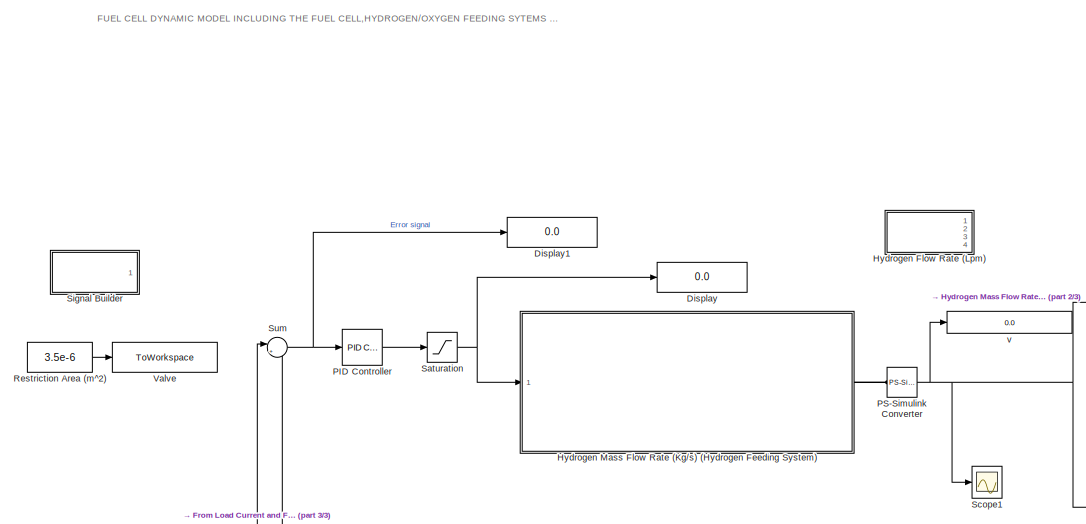
[diagram: root canvas - part 1/3, top left region]
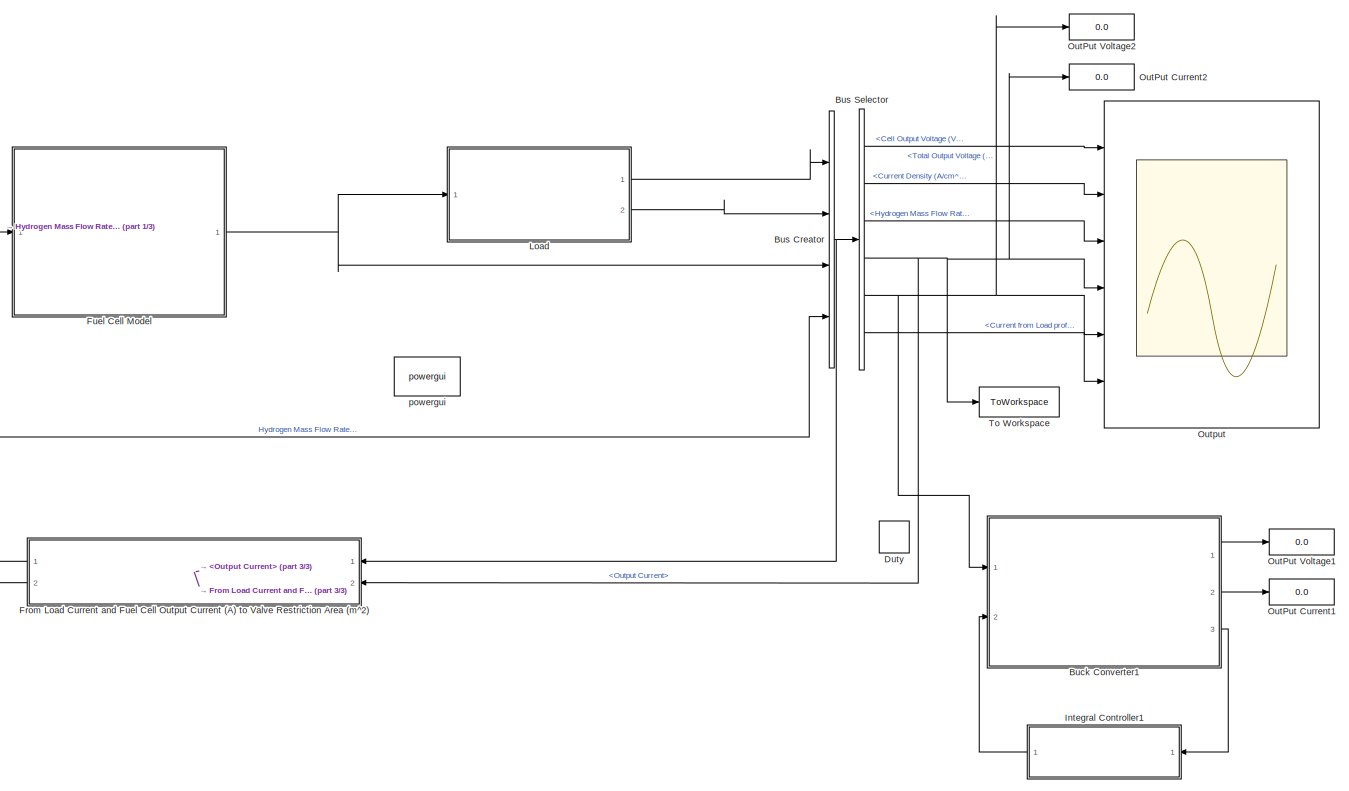
[diagram: root canvas - part 2/3, right side, full height]
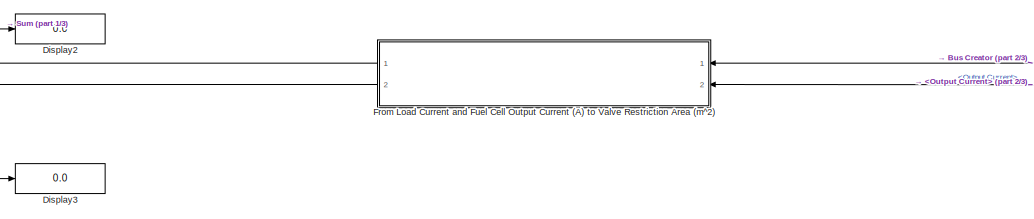
[diagram: root canvas - part 3/3, bottom center region]
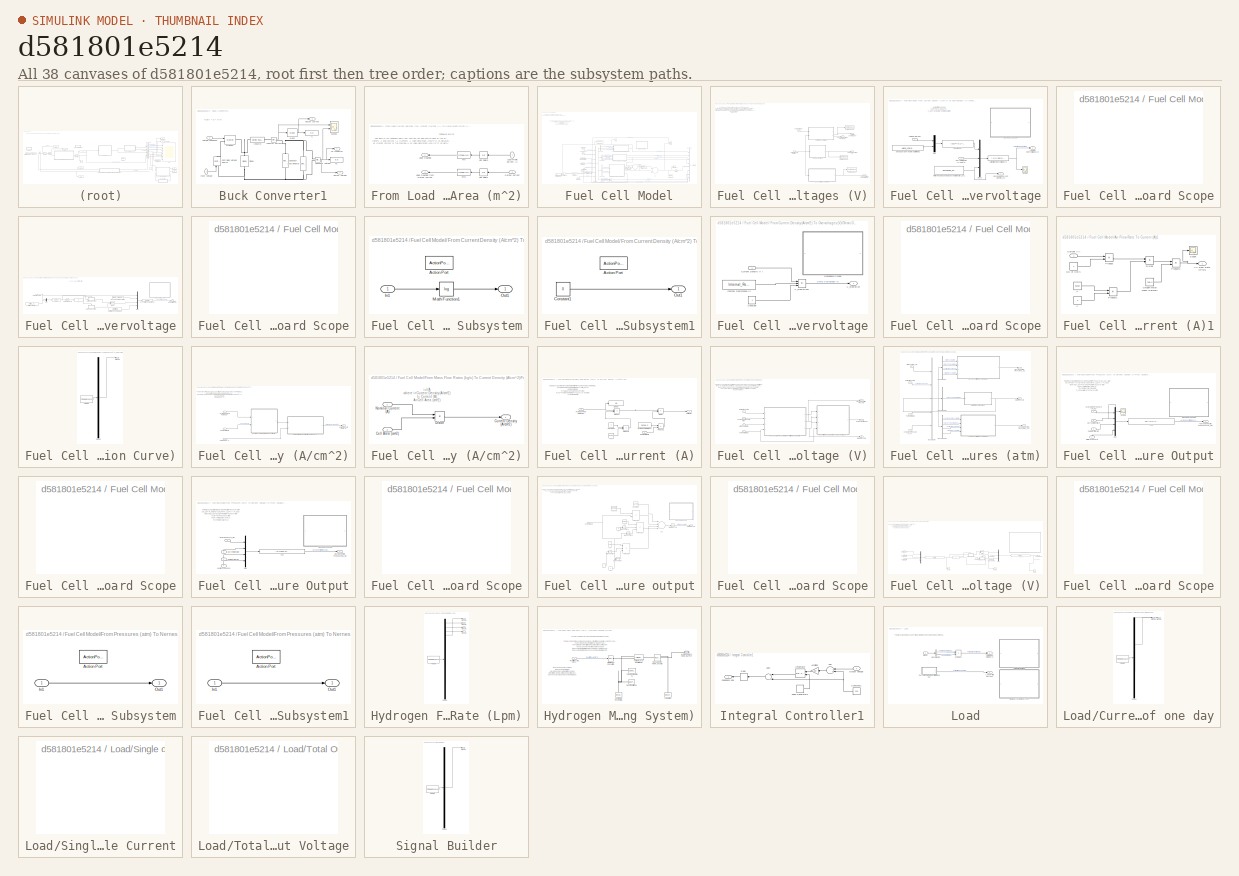
[diagram: thumbnail index - all 38 canvases of the model, root first then tree order]
MODEL slx_d581801e5214
KIND model
CONFIG AbsTol = auto
CONFIG EnableMultiTasking = on
CONFIG FixedStep = 0.01
CONFIG MaxStep = 1e-4
CONFIG MinStep = auto
CONFIG RelTol = 1e-3
CONFIG SampleTimeConstraint = Unconstrained
CONFIG Solver = VariableStepAuto
CONFIG SolverName = VariableStepAuto
CONFIG StartTime = 0
CONFIG StopTime = 20
BLOCK [Display]  v
  Decimation = 1
  Ports = [1]
BLOCK [SubSystem] Buck Converter1
  Ports = [2, 3]
  RequestExecContextInheritance = off
  Variant = off
BLOCK [Reference] Buck Converter1/Capacitor  REF=powerlib/Elements/Series RLC Branch
  Ports = [0, 0, 0, 0, 0, 1, 1]
  SourceBlock = powerlib/Elements/Series RLC Branch
  SourceProductBaseCode = PS
  SourceProductName = Simscape Power Systems
  SourceType = Series RLC Branch
BLOCK [Reference] Buck Converter1/Capacitor Voltage  REF=powerlib/Measurements/Voltage Measurement
  Ports = [0, 1, 0, 0, 0, 2]
  SourceBlock = powerlib/Measurements/Voltage Measurement
  SourceProductBaseCode = PS
  SourceProductName = Simscape Power Systems
  SourceType = Voltage Measurement
BLOCK [Reference] Buck Converter1/Controlled Voltage Source  REF=powerlib/Electrical
Sources/Controlled Voltage Source
  Ports = [1, 0, 0, 0, 0, 1, 1]
  SourceBlock = powerlib/Electrical\nSources/Controlled Voltage Source
  SourceProductBaseCode = PS
  SourceProductName = Simscape Power Systems
  SourceType = Controlled Voltage Source
BLOCK [Reference] Buck Converter1/Diode  REF=powerlib/Power
Electronics/Diode
  Ports = [0, 0, 0, 0, 0, 1, 1]
  SourceBlock = powerlib/Power\nElectronics/Diode
  SourceProductBaseCode = PS
  SourceProductName = Simscape Power Systems
  SourceType = Diode
BLOCK [Display] Buck Converter1/IL
  Decimation = 1
  Ports = [1]
BLOCK [Reference] Buck Converter1/Inductor  REF=powerlib/Elements/Series RLC Branch
  Ports = [0, 0, 0, 0, 0, 1, 1]
  SourceBlock = powerlib/Elements/Series RLC Branch
  SourceProductBaseCode = PS
  SourceProductName = Simscape Power Systems
  SourceType = Series RLC Branch
BLOCK [Reference] Buck Converter1/Inductor Current  REF=powerlib/Measurements/Current Measurement
  Ports = [0, 1, 0, 0, 0, 1, 1]
  SourceBlock = powerlib/Measurements/Current Measurement
  SourceProductBaseCode = PS
  SourceProductName = Simscape Power Systems
  SourceType = Current Measurement
BLOCK [Inport] Buck Converter1/Input Voltage
  IconDisplay = Port number
BLOCK [Reference] Buck Converter1/Load Resistor  REF=powerlib/Elements/Series RLC Branch
  Ports = [0, 0, 0, 0, 0, 1, 1]
  SourceBlock = powerlib/Elements/Series RLC Branch
  SourceProductBaseCode = PS
  SourceProductName = Simscape Power Systems
  SourceType = Series RLC Branch
BLOCK [Reference] Buck Converter1/MOSFET  REF=powerlib/Power
Electronics/Mosfet
  Ports = [1, 0, 0, 0, 0, 1, 1]
  SourceBlock = powerlib/Power\nElectronics/Mosfet
  SourceProductBaseCode = PS
  SourceProductName = Simscape Power Systems
  SourceType = Mosfet
BLOCK [Reference] Buck Converter1/Mean  REF=powerlib_meascontrol/Measurements/Mean
  Ports = [1, 1]
  SourceBlock = powerlib_meascontrol/Measurements/Mean
  SourceProductBaseCode = PS
  SourceProductName = Simscape Power Systems
  SourceType = Mean
BLOCK [Outport] Buck Converter1/Output Current
  IconDisplay = Port number
  Port = 2
BLOCK [Outport] Buck Converter1/Output Voltage
  IconDisplay = Port number
  Port = 3
BLOCK [Scope] Buck Converter1/Scope2
  NumInputPorts = 2
  Ports = [2]
  ScopeSpecificationString = C++SS(StrPVP('Location','[1, 49, 1361, 727]'),StrPVP('Open','off'),StrPVP('ZoomMode','xonly'),MxPVP('AxesTitles',53,'struct(''axes1'',''%<SignalLabel>'',''axes2'',''%<SignalLabel>'')'),MxPVP('ScopeGraphics',56,'struct(''FigureColor'',''[0.501960784313725 0.501960784313725 0.501960784313725]'',''AxesColor'',''[1 1 1]'',''AxesTickColor'',''[1 1 1]'',''LineColors'',''[1 0 0;1 0 1;0 1 1;1 0 0;0 1 0;0 ...<+383ch>
BLOCK [Display] Buck Converter1/VC
  Decimation = 1
  Ports = [1]
BLOCK [Outport] Buck Converter1/VC Inspector
  IconDisplay = Port number
BLOCK [Inport] Buck Converter1/Voltage Feedback
  IconDisplay = Port number
  Port = 2
BLOCK [BusCreator] Bus Creator
  DisplayOption = bar
  InheritFromInputs = on
  Inputs = 4
  Ports = [4, 1]
BLOCK [BusSelector] Bus Selector
  OutputAsBus = off
  OutputSignals = signal3.Cell Output Voltage (V),signal3.Current Density (A/cm^2),Hydrogen Mass Flow Rate (kg/s),signal3.Output Current,Total Output Voltage (V),Current from Load profile (Alex to Aswan)
  Ports = [1, 6]
BLOCK [Display] Display
  Decimation = 100
  Ports = [1]
BLOCK [Display] Display1
  Decimation = 1
  Ports = [1]
BLOCK [Display] Display2
  Decimation = 1
  Ports = [1]
BLOCK [Display] Display3
  Decimation = 1
  Ports = [1]
BLOCK [DiscretePulseGenerator] Duty
  Period = 1/5e3
  Ports = [0, 1]
  PulseType = Time based
  PulseWidth = 73
BLOCK [SubSystem] From Load Current and Fuel Cell Output Current (A) to Valve Restriction Area (m^2)
  Ports = [2, 2]
  RequestExecContextInheritance = off
  Variant = off
BLOCK [Fcn] From Load Current and Fuel Cell Output Current (A) to Valve Restriction Area (m^2)/Fcn
  Expr = (3.0735e-14*(u(1)^3)) + (-5.0428e-11*(u(1)^2)) +(4.1772e-08*u(1)) + 2.7105e-07
BLOCK [Fcn] From Load Current and Fuel Cell Output Current (A) to Valve Restriction Area (m^2)/Fcn1
  Expr = (3.0735e-14*(u(1)^3)) + (-5.0428e-11*(u(1)^2)) +(4.1772e-08*u(1)) + 2.7105e-07
BLOCK [Inport] From Load Current and Fuel Cell Output Current (A) to Valve Restriction Area (m^2)/Load Profile Current (A)
  IconDisplay = Port number
BLOCK [Inport] From Load Current and Fuel Cell Output Current (A) to Valve Restriction Area (m^2)/Output Current
  IconDisplay = Port number
  Port = 2
BLOCK [UnitDelay] From Load Current and Fuel Cell Output Current (A) to Valve Restriction Area (m^2)/Unit Delay1
  InputProcessing = Elements as channels (sample based)
  SampleTime = -1
BLOCK [UnitDelay] From Load Current and Fuel Cell Output Current (A) to Valve Restriction Area (m^2)/Unit Delay2
  InputProcessing = Elements as channels (sample based)
  SampleTime = -1
BLOCK [Outport] From Load Current and Fuel Cell Output Current (A) to Valve Restriction Area (m^2)/Valve Opening
  IconDisplay = Port number
BLOCK [Outport] From Load Current and Fuel Cell Output Current (A) to Valve Restriction Area (m^2)/Valve Opening from Output Current
  IconDisplay = Port number
  Port = 2
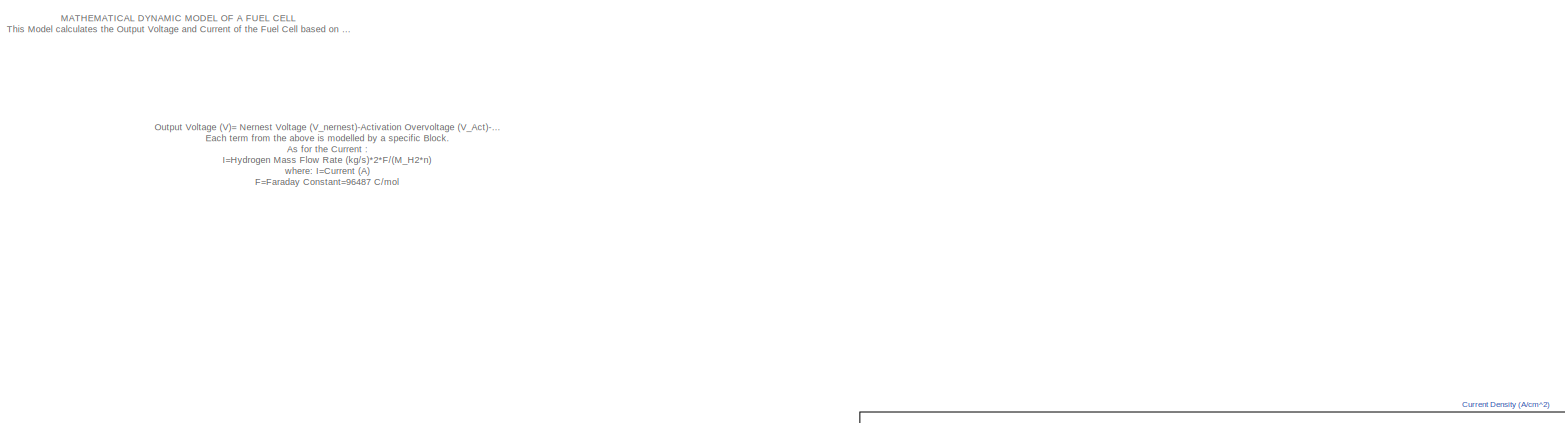
[diagram: Fuel Cell Model - part 1/4, top left region]
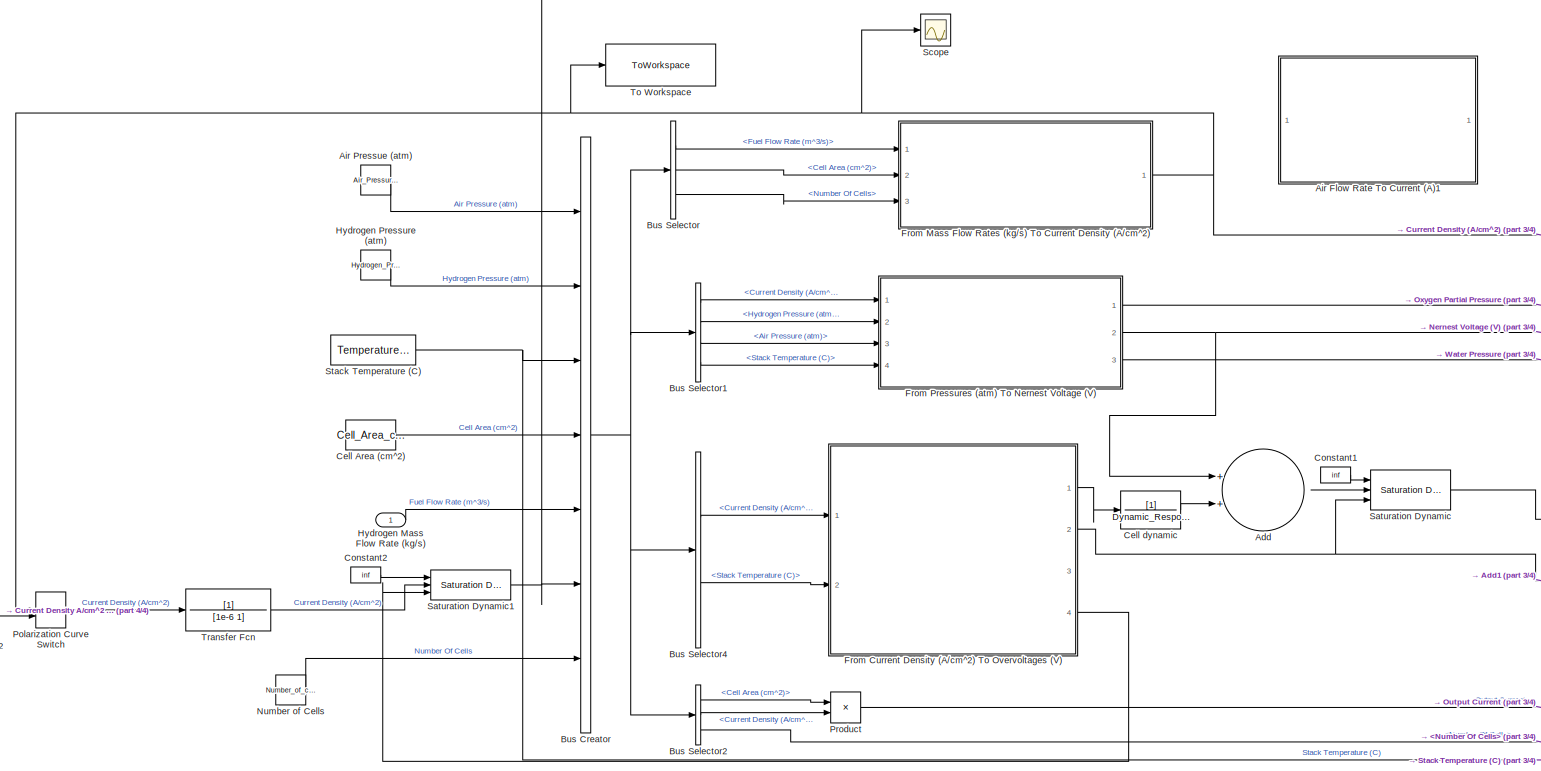
[diagram: Fuel Cell Model - part 2/4, bottom center region]
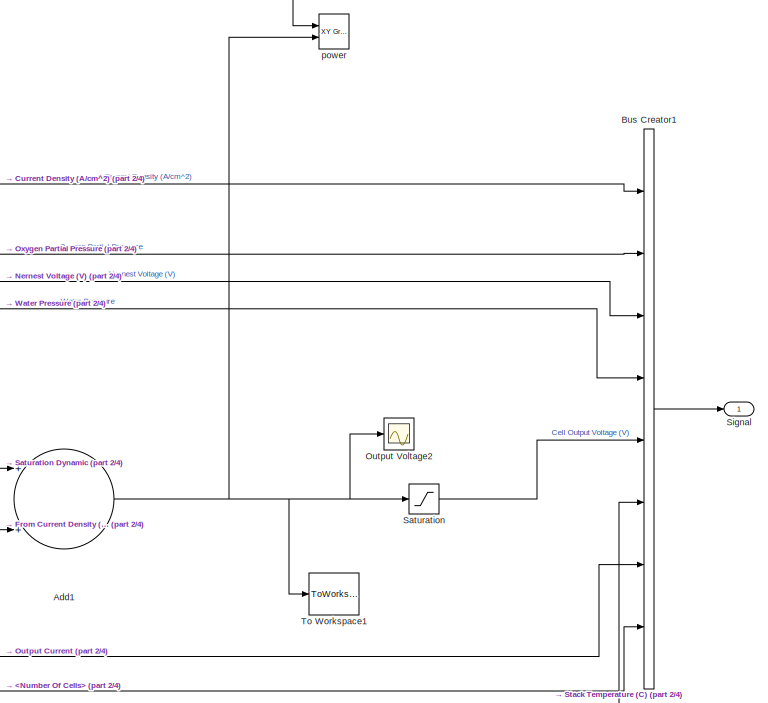
[diagram: Fuel Cell Model - part 3/4, bottom right region]
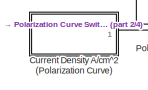
[diagram: Fuel Cell Model - part 4/4, bottom left region]
BLOCK [SubSystem] Fuel Cell Model
  Ports = [1, 1]
  RequestExecContextInheritance = off
  Variant = off
BLOCK [SubSystem] Fuel Cell Model/ From Current Density (A//cm^2) To Overvoltages (V)
  Ports = [2, 4]
  RequestExecContextInheritance = off
  Variant = off
BLOCK [SubSystem] Fuel Cell Model/ From Current Density (A//cm^2) To Overvoltages (V)/Activation Overvoltage
  Ports = [2, 2]
  RequestExecContextInheritance = off
  Variant = off
BLOCK [Outport] Fuel Cell Model/ From Current Density (A//cm^2) To Overvoltages (V)/Activation Overvoltage (V)
  IconDisplay = Port number
BLOCK [Fcn] Fuel Cell Model/ From Current Density (A//cm^2) To Overvoltages (V)/Activation Overvoltage/Activation Overvoltage (V)
  Expr = (-u(1)*log(u(2)/u(3)))
BLOCK [Outport] Fuel Cell Model/ From Current Density (A//cm^2) To Overvoltages (V)/Activation Overvoltage/Activation Overvoltage1 (V)
  IconDisplay = Port number
BLOCK [Constant] Fuel Cell Model/ From Current Density (A//cm^2) To Overvoltages (V)/Activation Overvoltage/Alpha Charge Transfer Coefficient1
  Value = Alpha_charge_Transfer_Coefficient
BLOCK [Fcn] Fuel Cell Model/ From Current Density (A//cm^2) To Overvoltages (V)/Activation Overvoltage/Constant (b)
  Expr = (8.314*(u(1)+273.15))/(2*u(2)*96485)
BLOCK [Inport] Fuel Cell Model/ From Current Density (A//cm^2) To Overvoltages (V)/Activation Overvoltage/Current Density (i)(A//cm^2)
  IconDisplay = Port number
  Port = 2
BLOCK [SubSystem] Fuel Cell Model/ From Current Density (A//cm^2) To Overvoltages (V)/Activation Overvoltage/Dashboard Scope
  DialogController = hmiCreateDDGDialog
  IsWebBlock = on
  MaskHideContents = on
  Ports = []
  RequestExecContextInheritance = off
  Variant = off
BLOCK [Outport] Fuel Cell Model/ From Current Density (A//cm^2) To Overvoltages (V)/Activation Overvoltage/Exchange Current Density (i_0)
  IconDisplay = Port number
  Port = 2
BLOCK [Mux] Fuel Cell Model/ From Current Density (A//cm^2) To Overvoltages (V)/Activation Overvoltage/Mux
  DisplayOption = bar
  Inputs = 2
  Ports = [2, 1]
BLOCK [Mux] Fuel Cell Model/ From Current Density (A//cm^2) To Overvoltages (V)/Activation Overvoltage/Mux1
  DisplayOption = bar
  Inputs = 3
  Ports = [3, 1]
BLOCK [Constant] Fuel Cell Model/ From Current Density (A//cm^2) To Overvoltages (V)/Activation Overvoltage/Reference Exchange Current Density (I_0)1
  Value = Exchange_Current_Density_i0
BLOCK [Scope] Fuel Cell Model/ From Current Density (A//cm^2) To Overvoltages (V)/Activation Overvoltage/Scope
  NumInputPorts = 1
  Ports = [1]
  ScopeSpecificationString = C++SS(StrPVP('Location','[151, 365, 512, 604]'),StrPVP('Open','off'),MxPVP('AxesTitles',53,'struct(''axes1'',''%<SignalLabel>'')'),MxPVP('ScopeGraphics',56,'struct(''FigureColor'',''[0.5 0.5 0.5]'',''AxesColor'',''[0 0 0]'',''AxesTickColor'',''[1 1 1]'',''LineColors'',''[1 1 0;1 0 1;0 1 1;1 0 0;0 1 0;0 0 1]'',''LineStyles'',''-|-|-|-|-|-'',''LineWidths'',''[0.5 0.5 0.5 0.5 0.5 0.5]'',''MarkerStyle...<+197ch>
BLOCK [Inport] Fuel Cell Model/ From Current Density (A//cm^2) To Overvoltages (V)/Activation Overvoltage/Temperature//C1
  IconDisplay = Port number
BLOCK [SubSystem] Fuel Cell Model/ From Current Density (A//cm^2) To Overvoltages (V)/Concentration Overvoltage
  Ports = [1, 1]
  RequestExecContextInheritance = off
  Variant = off
BLOCK [Outport] Fuel Cell Model/ From Current Density (A//cm^2) To Overvoltages (V)/Concentration Overvoltage (V)
  IconDisplay = Port number
  Port = 3
BLOCK [Constant] Fuel Cell Model/ From Current Density (A//cm^2) To Overvoltages (V)/Concentration Overvoltage/Amplification Constant Alpha2
  Value = Amplification_Constant_Alpha1
BLOCK [Reference] Fuel Cell Model/ From Current Density (A//cm^2) To Overvoltages (V)/Concentration Overvoltage/Compare To Zero  REF=simulink/Logic and Bit
Operations/Compare
To Zero
  Ports = [1, 1]
  SourceBlock = simulink/Logic and Bit\nOperations/Compare\nTo Zero
  SourceProductBaseCode = SL
  SourceProductName = Simulink
  SourceType = Compare To Zero
BLOCK [Fcn] Fuel Cell Model/ From Current Density (A//cm^2) To Overvoltages (V)/Concentration Overvoltage/Concentration Overvoltage (V)
  Expr = (u(1)^u(2))*u(3)*u(4)
BLOCK [Outport] Fuel Cell Model/ From Current Density (A//cm^2) To Overvoltages (V)/Concentration Overvoltage/Concentration Overvoltage1 (V) 
  IconDisplay = Port number
BLOCK [Inport] Fuel Cell Model/ From Current Density (A//cm^2) To Overvoltages (V)/Concentration Overvoltage/Current Density (i)1
  IconDisplay = Port number
BLOCK [SubSystem] Fuel Cell Model/ From Current Density (A//cm^2) To Overvoltages (V)/Concentration Overvoltage/Dashboard Scope
  DialogController = hmiCreateDDGDialog
  IsWebBlock = on
  MaskHideContents = on
  Ports = []
  RequestExecContextInheritance = off
  Variant = off
BLOCK [Fcn] Fuel Cell Model/ From Current Density (A//cm^2) To Overvoltages (V)/Concentration Overvoltage/Fcn
  Expr = 1-(u(1)/u(2))
BLOCK [If] Fuel Cell Model/ From Current Density (A//cm^2) To Overvoltages (V)/Concentration Overvoltage/If
  IfExpression = u1 == 0
  Ports = [1, 2]
BLOCK [SubSystem] Fuel Cell Model/ From Current Density (A//cm^2) To Overvoltages (V)/Concentration Overvoltage/If Action Subsystem
  Ports = [1, 1, 0, 0, 0, 0, 0, 1]
  RequestExecContextInheritance = off
  TreatAsAtomicUnit = on
  Variant = off
BLOCK [ActionPort] Fuel Cell Model/ From Current Density (A//cm^2) To Overvoltages (V)/Concentration Overvoltage/If Action Subsystem/Action Port
  ActionType = then
BLOCK [Inport] Fuel Cell Model/ From Current Density (A//cm^2) To Overvoltages (V)/Concentration Overvoltage/If Action Subsystem/In1
  IconDisplay = Port number
BLOCK [Math] Fuel Cell Model/ From Current Density (A//cm^2) To Overvoltages (V)/Concentration Overvoltage/If Action Subsystem/Math Function1
  Operator = log
  OutputSignalType = real
  Ports = [1, 1]
BLOCK [Outport] Fuel Cell Model/ From Current Density (A//cm^2) To Overvoltages (V)/Concentration Overvoltage/If Action Subsystem/Out1
  IconDisplay = Port number
BLOCK [SubSystem] Fuel Cell Model/ From Current Density (A//cm^2) To Overvoltages (V)/Concentration Overvoltage/If Action Subsystem1
  Ports = [0, 1, 0, 0, 0, 0, 0, 1]
  RequestExecContextInheritance = off
  TreatAsAtomicUnit = on
  Variant = off
BLOCK [ActionPort] Fuel Cell Model/ From Current Density (A//cm^2) To Overvoltages (V)/Concentration Overvoltage/If Action Subsystem1/Action Port
  ActionType = else
BLOCK [Constant] Fuel Cell Model/ From Current Density (A//cm^2) To Overvoltages (V)/Concentration Overvoltage/If Action Subsystem1/Constant1
  Value = 0
BLOCK [Outport] Fuel Cell Model/ From Current Density (A//cm^2) To Overvoltages (V)/Concentration Overvoltage/If Action Subsystem1/Out1
  IconDisplay = Port number
BLOCK [Constant] Fuel Cell Model/ From Current Density (A//cm^2) To Overvoltages (V)/Concentration Overvoltage/Limiting Current (i_L)1
  Value = Limiting_Current_Density_i_l
BLOCK [Constant] Fuel Cell Model/ From Current Density (A//cm^2) To Overvoltages (V)/Concentration Overvoltage/Mass Transport Constant (K)1
  Value = Mass_Transport_Limit_k
BLOCK [Merge] Fuel Cell Model/ From Current Density (A//cm^2) To Overvoltages (V)/Concentration Overvoltage/Merge
  InitialOutput = 1
  Ports = [2, 1]
BLOCK [Mux] Fuel Cell Model/ From Current Density (A//cm^2) To Overvoltages (V)/Concentration Overvoltage/Mux
  DisplayOption = bar
  Inputs = 2
  Ports = [2, 1]
BLOCK [Mux] Fuel Cell Model/ From Current Density (A//cm^2) To Overvoltages (V)/Concentration Overvoltage/Mux1
  DisplayOption = bar
  Ports = [4, 1]
BLOCK [Inport] Fuel Cell Model/ From Current Density (A//cm^2) To Overvoltages (V)/Current Density (A//cm^2)
  IconDisplay = Port number
BLOCK [Outport] Fuel Cell Model/ From Current Density (A//cm^2) To Overvoltages (V)/Exchange Current Density (i_0)
  IconDisplay = Port number
  Port = 4
BLOCK [SubSystem] Fuel Cell Model/ From Current Density (A//cm^2) To Overvoltages (V)/Ohmic Overvoltage
  Ports = [1, 1]
  RequestExecContextInheritance = off
  Variant = off
BLOCK [Outport] Fuel Cell Model/ From Current Density (A//cm^2) To Overvoltages (V)/Ohmic Overvoltage (V)
  IconDisplay = Port number
  Port = 2
BLOCK [Constant] Fuel Cell Model/ From Current Density (A//cm^2) To Overvoltages (V)/Ohmic Overvoltage/Constant
  Value = -1
BLOCK [Inport] Fuel Cell Model/ From Current Density (A//cm^2) To Overvoltages (V)/Ohmic Overvoltage/Current Density (i )
  IconDisplay = Port number
BLOCK [SubSystem] Fuel Cell Model/ From Current Density (A//cm^2) To Overvoltages (V)/Ohmic Overvoltage/Dashboard Scope
  DialogController = hmiCreateDDGDialog
  IsWebBlock = on
  MaskHideContents = on
  Ports = []
  RequestExecContextInheritance = off
  Variant = off
BLOCK [Constant] Fuel Cell Model/ From Current Density (A//cm^2) To Overvoltages (V)/Ohmic Overvoltage/Internal Resistance (r)
  Value = Internal_Resistance_r
BLOCK [Outport] Fuel Cell Model/ From Current Density (A//cm^2) To Overvoltages (V)/Ohmic Overvoltage/V_Resistive
  IconDisplay = Port number
BLOCK [Product] Fuel Cell Model/ From Current Density (A//cm^2) To Overvoltages (V)/Ohmic Overvoltage/V_Resistive1
  InputSameDT = off
  Inputs = 3
  OutDataTypeStr = Inherit: Inherit via internal rule
  Ports = [3, 1]
  RndMeth = Floor
  SaturateOnIntegerOverflow = off
BLOCK [Inport] Fuel Cell Model/ From Current Density (A//cm^2) To Overvoltages (V)/Temperature (C)
  IconDisplay = Port number
  Port = 2
BLOCK [ToWorkspace] Fuel Cell Model/ From Current Density (A//cm^2) To Overvoltages (V)/To Workspace1
  MaxDataPoints = inf
  Ports = [1]
  SampleTime = -1
  Save2DSignal = 2-D array (concatenate along first dimension)
  VariableName = V_Concentration
BLOCK [ToWorkspace] Fuel Cell Model/ From Current Density (A//cm^2) To Overvoltages (V)/To Workspace2
  MaxDataPoints = inf
  Ports = [1]
  SampleTime = -1
  Save2DSignal = 2-D array (concatenate along first dimension)
  VariableName = V_Activation
BLOCK [ToWorkspace] Fuel Cell Model/ From Current Density (A//cm^2) To Overvoltages (V)/To Workspace3
  MaxDataPoints = inf
  Ports = [1]
  SampleTime = -1
  Save2DSignal = 2-D array (concatenate along first dimension)
  VariableName = V_Ohmic
BLOCK [Sum] Fuel Cell Model/Add
  InputSameDT = off
  OutDataTypeStr = Inherit: Inherit via internal rule
  Ports = [2, 1]
  SaturateOnIntegerOverflow = off
BLOCK [Sum] Fuel Cell Model/Add1
  InputSameDT = off
  OutDataTypeStr = Inherit: Inherit via internal rule
  Ports = [2, 1]
  SaturateOnIntegerOverflow = off
BLOCK [SubSystem] Fuel Cell Model/Air Flow Rate To Current (A)1
  Ports = [1, 1]
  RequestExecContextInheritance = off
  Variant = off
BLOCK [Outport] Fuel Cell Model/Air Flow Rate To Current (A)1/Air Flow Rate (m^3//s)
  IconDisplay = Port number
BLOCK [Inport] Fuel Cell Model/Air Flow Rate To Current (A)1/Current (A)
  IconDisplay = Port number
BLOCK [Product] Fuel Cell Model/Air Flow Rate To Current (A)1/Divide
  InputSameDT = off
  Inputs = */
  OutDataTypeStr = Inherit: Inherit via internal rule
  Ports = [2, 1]
  RndMeth = Floor
  SaturateOnIntegerOverflow = off
BLOCK [Constant] Fuel Cell Model/Air Flow Rate To Current (A)1/F
  Value = 96487
BLOCK [Constant] Fuel Cell Model/Air Flow Rate To Current (A)1/No. of Cells
BLOCK [Constant] Fuel Cell Model/Air Flow Rate To Current (A)1/Oxygen Molar Mass (Kg//mol)
  Value = 32e-3
BLOCK [Product] Fuel Cell Model/Air Flow Rate To Current (A)1/Product
  InputSameDT = off
  OutDataTypeStr = Inherit: Inherit via internal rule
  Ports = [2, 1]
  RndMeth = Floor
  SaturateOnIntegerOverflow = off
BLOCK [Product] Fuel Cell Model/Air Flow Rate To Current (A)1/Product1
  InputSameDT = off
  OutDataTypeStr = Inherit: Inherit via internal rule
  Ports = [2, 1]
  RndMeth = Floor
  SaturateOnIntegerOverflow = off
BLOCK [Product] Fuel Cell Model/Air Flow Rate To Current (A)1/Product2
  InputSameDT = off
  OutDataTypeStr = Inherit: Inherit via internal rule
  Ports = [2, 1]
  RndMeth = Floor
  SaturateOnIntegerOverflow = off
BLOCK [Scope] Fuel Cell Model/Air Flow Rate To Current (A)1/Scope
  NumInputPorts = 1
  Ports = [1]
  ScopeSpecificationString = C++SS(StrPVP('Location','[188, 365, 512, 604]'),StrPVP('Open','off'),MxPVP('AxesTitles',53,'struct(''axes1'',''%<SignalLabel>'')'),StrPVP('SaveName','ScopeData7'),StrPVP('LimitDataPoints','on'),StrPVP('DataFormat','Array'),StrPVP('Decimation','1'),StrPVP('BlockParamSampleInput','off'))
BLOCK [Constant] Fuel Cell Model/Air Flow Rate To Current (A)1/c
  Value = 4
BLOCK [Constant] Fuel Cell Model/Air Pressue (atm)
  Value = Air_Pressure_atm
BLOCK [BusCreator] Fuel Cell Model/Bus Creator
  DisplayOption = bar
  InheritFromInputs = on
  Inputs = 7
  Ports = [7, 1]
BLOCK [BusCreator] Fuel Cell Model/Bus Creator1
  DisplayOption = bar
  InheritFromInputs = on
  Inputs = 8
  Ports = [8, 1]
BLOCK [BusSelector] Fuel Cell Model/Bus Selector
  OutputAsBus = off
  OutputSignals = Fuel Flow Rate (m^3/s),Cell Area (cm^2),Number Of Cells
  Ports = [1, 3]
BLOCK [BusSelector] Fuel Cell Model/Bus Selector1
  OutputAsBus = off
  OutputSignals = Current Density (A/cm^2),Hydrogen Pressure (atm),Air Pressure (atm),Stack Temperature (C)
  Ports = [1, 4]
BLOCK [BusSelector] Fuel Cell Model/Bus Selector2
  OutputAsBus = off
  OutputSignals = Cell Area (cm^2),Current Density (A/cm^2),Number Of Cells
  Ports = [1, 3]
BLOCK [BusSelector] Fuel Cell Model/Bus Selector4
  OutputAsBus = off
  OutputSignals = Current Density (A/cm^2),Stack Temperature (C)
  Ports = [1, 2]
BLOCK [Constant] Fuel Cell Model/Cell Area (cm^2)
  Value = Cell_Area_cm_squared
BLOCK [TransferFcn] Fuel Cell Model/Cell dynamic
  Denominator = Dynamic_Response
BLOCK [Constant] Fuel Cell Model/Constant1
  Value = inf
BLOCK [Constant] Fuel Cell Model/Constant2
  Value = inf
BLOCK [SubSystem] Fuel Cell Model/Current Density A//cm^2 (Polarization Curve)
  ClipboardFcn = sigbuilder_block('clipboard');
  CloseFcn = sigbuilder_block('close');
  ContinueFcn = sigbuilder_block('continue');
  CopyFcn = sigbuilder_block('copy');
  DeleteFcn = sigbuilder_block('delete');
  LoadFcn = sigbuilder_block('load');
  MaskHideContents = on
  ModelCloseFcn = sigbuilder_block('modelClose');
  NameChangeFcn = sigbuilder_block('namechange');
  OpenFcn = sigbuilder_block('open',[403.5 117 550.5 359.25 ]);
  PauseFcn = sigbuilder_block('pause');
  Ports = [0, 1]
  PreSaveFcn = sigbuilder_block('preSave');
  RequestExecContextInheritance = off
  StartFcn = sigbuilder_block('start');
  StopFcn = sigbuilder_block('stop');
  Tag = STV Subsys
  Variant = off
BLOCK [Demux] Fuel Cell Model/Current Density A//cm^2 (Polarization Curve)/Demux
  Outputs = 1
  Ports = [1, 1]
  Tag = STV Demux
BLOCK [FromWorkspace] Fuel Cell Model/Current Density A//cm^2 (Polarization Curve)/FromWs
  SampleTime = 0
  Tag = STV FromWs
  VariableName = tuvar
  ZeroCross = on
BLOCK [Outport] Fuel Cell Model/Current Density A//cm^2 (Polarization Curve)/Signal 1
  IconDisplay = Port number
  Tag = STV Outport
BLOCK [SubSystem] Fuel Cell Model/From Mass Flow Rates (kg//s) To Current Density (A//cm^2)
  Ports = [3, 1]
  RequestExecContextInheritance = off
  Variant = off
BLOCK [Inport] Fuel Cell Model/From Mass Flow Rates (kg//s) To Current Density (A//cm^2)/Cell Area (cm^2)
  IconDisplay = Port number
  Port = 2
BLOCK [Outport] Fuel Cell Model/From Mass Flow Rates (kg//s) To Current Density (A//cm^2)/Current Density (A//cm^2)
  IconDisplay = Port number
BLOCK [SubSystem] Fuel Cell Model/From Mass Flow Rates (kg//s) To Current Density (A//cm^2)/From Current (A) To Current Density (A//cm^2)
  Ports = [2, 1]
  RequestExecContextInheritance = off
  Variant = off
BLOCK [Inport] Fuel Cell Model/From Mass Flow Rates (kg//s) To Current Density (A//cm^2)/From Current (A) To Current Density (A//cm^2)/Cell Area (cm^2)
  IconDisplay = Port number
  Port = 2
BLOCK [Outport] Fuel Cell Model/From Mass Flow Rates (kg//s) To Current Density (A//cm^2)/From Current (A) To Current Density (A//cm^2)/Current Density (A//cm^2)
  IconDisplay = Port number
BLOCK [Product] Fuel Cell Model/From Mass Flow Rates (kg//s) To Current Density (A//cm^2)/From Current (A) To Current Density (A//cm^2)/Divide
  InputSameDT = off
  Inputs = */
  OutDataTypeStr = Inherit: Inherit via internal rule
  Ports = [2, 1]
  RndMeth = Floor
  SaturateOnIntegerOverflow = off
BLOCK [Inport] Fuel Cell Model/From Mass Flow Rates (kg//s) To Current Density (A//cm^2)/From Current (A) To Current Density (A//cm^2)/Nominal Current (A)
  IconDisplay = Port number
BLOCK [SubSystem] Fuel Cell Model/From Mass Flow Rates (kg//s) To Current Density (A//cm^2)/Fuel Mass Flow Rate (kg//s) To Current (A)
  Ports = [2, 1]
  RequestExecContextInheritance = off
  Variant = off
BLOCK [Constant] Fuel Cell Model/From Mass Flow Rates (kg//s) To Current Density (A//cm^2)/Fuel Mass Flow Rate (kg//s) To Current (A)/Constant1
  Value = 2
BLOCK [Outport] Fuel Cell Model/From Mass Flow Rates (kg//s) To Current Density (A//cm^2)/Fuel Mass Flow Rate (kg//s) To Current (A)/Current (A)
  IconDisplay = Port number
BLOCK [Display] Fuel Cell Model/From Mass Flow Rates (kg//s) To Current Density (A//cm^2)/Fuel Mass Flow Rate (kg//s) To Current (A)/Display
  Decimation = 1
  Ports = [1]
BLOCK [Product] Fuel Cell Model/From Mass Flow Rates (kg//s) To Current Density (A//cm^2)/Fuel Mass Flow Rate (kg//s) To Current (A)/Divide
  InputSameDT = off
  Inputs = */
  OutDataTypeStr = Inherit: Inherit via internal rule
  Ports = [2, 1]
  RndMeth = Floor
  SaturateOnIntegerOverflow = off
BLOCK [Constant] Fuel Cell Model/From Mass Flow Rates (kg//s) To Current Density (A//cm^2)/Fuel Mass Flow Rate (kg//s) To Current (A)/F
  Value = 96487
BLOCK [Inport] Fuel Cell Model/From Mass Flow Rates (kg//s) To Current Density (A//cm^2)/Fuel Mass Flow Rate (kg//s) To Current (A)/Hydrogen Flow Rate (kg//s)
  IconDisplay = Port number
BLOCK [Constant] Fuel Cell Model/From Mass Flow Rates (kg//s) To Current Density (A//cm^2)/Fuel Mass Flow Rate (kg//s) To Current (A)/Hydrogen Molar Mass
  Value = 2.016e-3
BLOCK [Inport] Fuel Cell Model/From Mass Flow Rates (kg//s) To Current Density (A//cm^2)/Fuel Mass Flow Rate (kg//s) To Current (A)/Number Of Cells
  IconDisplay = Port number
  Port = 2
BLOCK [Product] Fuel Cell Model/From Mass Flow Rates (kg//s) To Current Density (A//cm^2)/Fuel Mass Flow Rate (kg//s) To Current (A)/Product
  InputSameDT = off
  OutDataTypeStr = Inherit: Inherit via internal rule
  Ports = [2, 1]
  RndMeth = Floor
  SaturateOnIntegerOverflow = off
BLOCK [Product] Fuel Cell Model/From Mass Flow Rates (kg//s) To Current Density (A//cm^2)/Fuel Mass Flow Rate (kg//s) To Current (A)/Product1
  InputSameDT = off
  OutDataTypeStr = Inherit: Inherit via internal rule
  Ports = [2, 1]
  RndMeth = Floor
  SaturateOnIntegerOverflow = off
BLOCK [Product] Fuel Cell Model/From Mass Flow Rates (kg//s) To Current Density (A//cm^2)/Fuel Mass Flow Rate (kg//s) To Current (A)/Product2
  InputSameDT = off
  OutDataTypeStr = Inherit: Inherit via internal rule
  Ports = [2, 1]
  RndMeth = Floor
  SaturateOnIntegerOverflow = off
BLOCK [Inport] Fuel Cell Model/From Mass Flow Rates (kg//s) To Current Density (A//cm^2)/Hydrogen Flow Rate (kg//s)
  IconDisplay = Port number
BLOCK [Inport] Fuel Cell Model/From Mass Flow Rates (kg//s) To Current Density (A//cm^2)/Number Of Cells
  IconDisplay = Port number
  Port = 3
BLOCK [SubSystem] Fuel Cell Model/From Pressures (atm) To Nernest Voltage (V)
  Ports = [4, 3]
  RequestExecContextInheritance = off
  Variant = off
BLOCK [Inport] Fuel Cell Model/From Pressures (atm) To Nernest Voltage (V)/Air Pressure (atm)
  IconDisplay = Port number
  Port = 3
BLOCK [Inport] Fuel Cell Model/From Pressures (atm) To Nernest Voltage (V)/Current Density (i)
  IconDisplay = Port number
BLOCK [SubSystem] Fuel Cell Model/From Pressures (atm) To Nernest Voltage (V)/From Absolute Pressure (atm) To Partial Pressures (atm)
  Ports = [4, 3]
  RequestExecContextInheritance = off
  Variant = off
BLOCK [Inport] Fuel Cell Model/From Pressures (atm) To Nernest Voltage (V)/From Absolute Pressure (atm) To Partial Pressures (atm)/Air Pressure (P_air)
  IconDisplay = Port number
  Port = 3
BLOCK [BusCreator] Fuel Cell Model/From Pressures (atm) To Nernest Voltage (V)/From Absolute Pressure (atm) To Partial Pressures (atm)/Bus Creator
  DisplayOption = bar
  InheritFromInputs = on
  Inputs = 5
  Ports = [5, 1]
BLOCK [BusSelector] Fuel Cell Model/From Pressures (atm) To Nernest Voltage (V)/From Absolute Pressure (atm) To Partial Pressures (atm)/Bus Selector
  OutputAsBus = off
  OutputSignals = Air Pressure (atm),Stack Temperature (C),Current Density (A/cm^2),Water Pressure(atm)
  Ports = [1, 4]
BLOCK [BusSelector] Fuel Cell Model/From Pressures (atm) To Nernest Voltage (V)/From Absolute Pressure (atm) To Partial Pressures (atm)/Bus Selector1
  OutputAsBus = off
  OutputSignals = Stack Temperature (C)
  Ports = [1, 1]
BLOCK [BusSelector] Fuel Cell Model/From Pressures (atm) To Nernest Voltage (V)/From Absolute Pressure (atm) To Partial Pressures (atm)/Bus Selector2
  OutputAsBus = off
  OutputSignals = Hydrogen Pressure (atm),Stack Temperature (C),Current Density (A/cm^2),Water Pressure(atm)
  Ports = [1, 4]
BLOCK [Inport] Fuel Cell Model/From Pressures (atm) To Nernest Voltage (V)/From Absolute Pressure (atm) To Partial Pressures (atm)/Current Density (i )
  IconDisplay = Port number
BLOCK [Outport] Fuel Cell Model/From Pressures (atm) To Nernest Voltage (V)/From Absolute Pressure (atm) To Partial Pressures (atm)/Hydrogen Partial Pressure (pp_H2)
  IconDisplay = Port number
BLOCK [SubSystem] Fuel Cell Model/From Pressures (atm) To Nernest Voltage (V)/From Absolute Pressure (atm) To Partial Pressures (atm)/Hydrogen Partial Pressure Output
  Ports = [4, 1]
  RequestExecContextInheritance = off
  Variant = off
BLOCK [Inport] Fuel Cell Model/From Pressures (atm) To Nernest Voltage (V)/From Absolute Pressure (atm) To Partial Pressures (atm)/Hydrogen Partial Pressure Output/Current Density (i )
  IconDisplay = Port number
  Port = 3
BLOCK [SubSystem] Fuel Cell Model/From Pressures (atm) To Nernest Voltage (V)/From Absolute Pressure (atm) To Partial Pressures (atm)/Hydrogen Partial Pressure Output/Dashboard Scope
  DialogController = hmiCreateDDGDialog
  IsWebBlock = on
  MaskHideContents = on
  Ports = []
  RequestExecContextInheritance = off
  Variant = off
BLOCK [Fcn] Fuel Cell Model/From Pressures (atm) To Nernest Voltage (V)/From Absolute Pressure (atm) To Partial Pressures (atm)/Hydrogen Partial Pressure Output/Fcn
  Expr = 0.5*((u(1))/(exp(1.653*u(2)/((u(3)+273.15)^1.334)))-u(4))
BLOCK [Outport] Fuel Cell Model/From Pressures (atm) To Nernest Voltage (V)/From Absolute Pressure (atm) To Partial Pressures (atm)/Hydrogen Partial Pressure Output/Hydrogen Partial Pressure (pp_H2)
  IconDisplay = Port number
BLOCK [Inport] Fuel Cell Model/From Pressures (atm) To Nernest Voltage (V)/From Absolute Pressure (atm) To Partial Pressures (atm)/Hydrogen Partial Pressure Output/Hydrogen Pressure (P_H2)
  IconDisplay = Port number
BLOCK [Mux] Fuel Cell Model/From Pressures (atm) To Nernest Voltage (V)/From Absolute Pressure (atm) To Partial Pressures (atm)/Hydrogen Partial Pressure Output/Mux
  DisplayOption = bar
  Ports = [4, 1]
BLOCK [Scope] Fuel Cell Model/From Pressures (atm) To Nernest Voltage (V)/From Absolute Pressure (atm) To Partial Pressures (atm)/Hydrogen Partial Pressure Output/Scope
  NumInputPorts = 1
  Ports = [1]
  ScopeSpecificationString = C++SS(StrPVP('Location','[188, 365, 512, 604]'),StrPVP('Open','off'),MxPVP('AxesTitles',53,'struct(''axes1'',''%<SignalLabel>'')'),MxPVP('ScopeGraphics',56,'struct(''FigureColor'',''[0.5 0.5 0.5]'',''AxesColor'',''[0 0 0]'',''AxesTickColor'',''[1 1 1]'',''LineColors'',''[1 1 0;1 0 1;0 1 1;1 0 0;0 1 0;0 0 1]'',''LineStyles'',''-|-|-|-|-|-'',''LineWidths'',''[0.5 0.5 0.5 0.5 0.5 0.5]'',''MarkerStyle...<+196ch>
BLOCK [Inport] Fuel Cell Model/From Pressures (atm) To Nernest Voltage (V)/From Absolute Pressure (atm) To Partial Pressures (atm)/Hydrogen Partial Pressure Output/Temperature//C
  IconDisplay = Port number
  Port = 2
BLOCK [Inport] Fuel Cell Model/From Pressures (atm) To Nernest Voltage (V)/From Absolute Pressure (atm) To Partial Pressures (atm)/Hydrogen Partial Pressure Output/Water Pressure
  IconDisplay = Port number
  Port = 4
BLOCK [Inport] Fuel Cell Model/From Pressures (atm) To Nernest Voltage (V)/From Absolute Pressure (atm) To Partial Pressures (atm)/Hydrogen Pressure (P_H2)
  IconDisplay = Port number
  Port = 2
BLOCK [SubSystem] Fuel Cell Model/From Pressures (atm) To Nernest Voltage (V)/From Absolute Pressure (atm) To Partial Pressures (atm)/Oxygen Partial Pressure Output
  Ports = [4, 1]
  RequestExecContextInheritance = off
  Variant = off
BLOCK [Inport] Fuel Cell Model/From Pressures (atm) To Nernest Voltage (V)/From Absolute Pressure (atm) To Partial Pressures (atm)/Oxygen Partial Pressure Output/Air Pressure (P_air)
  IconDisplay = Port number
BLOCK [Inport] Fuel Cell Model/From Pressures (atm) To Nernest Voltage (V)/From Absolute Pressure (atm) To Partial Pressures (atm)/Oxygen Partial Pressure Output/Current Density//i
  IconDisplay = Port number
  Port = 3
BLOCK [SubSystem] Fuel Cell Model/From Pressures (atm) To Nernest Voltage (V)/From Absolute Pressure (atm) To Partial Pressures (atm)/Oxygen Partial Pressure Output/Dashboard Scope
  DialogController = hmiCreateDDGDialog
  IsWebBlock = on
  MaskHideContents = on
  Ports = []
  RequestExecContextInheritance = off
  Variant = off
BLOCK [Fcn] Fuel Cell Model/From Pressures (atm) To Nernest Voltage (V)/From Absolute Pressure (atm) To Partial Pressures (atm)/Oxygen Partial Pressure Output/Fcn
  Expr = (u(1)/exp(4.192 *u(2)/((u(3)+273.15)^1.334)))-u(4)
BLOCK [Mux] Fuel Cell Model/From Pressures (atm) To Nernest Voltage (V)/From Absolute Pressure (atm) To Partial Pressures (atm)/Oxygen Partial Pressure Output/Mux
  DisplayOption = bar
  Ports = [4, 1]
BLOCK [Outport] Fuel Cell Model/From Pressures (atm) To Nernest Voltage (V)/From Absolute Pressure (atm) To Partial Pressures (atm)/Oxygen Partial Pressure Output/Oxygen Partial Pressure pp_O2
  IconDisplay = Port number
BLOCK [Inport] Fuel Cell Model/From Pressures (atm) To Nernest Voltage (V)/From Absolute Pressure (atm) To Partial Pressures (atm)/Oxygen Partial Pressure Output/Temperature//C
  IconDisplay = Port number
  Port = 2
BLOCK [Inport] Fuel Cell Model/From Pressures (atm) To Nernest Voltage (V)/From Absolute Pressure (atm) To Partial Pressures (atm)/Oxygen Partial Pressure Output/Water Pressure
  IconDisplay = Port number
  Port = 4
BLOCK [Outport] Fuel Cell Model/From Pressures (atm) To Nernest Voltage (V)/From Absolute Pressure (atm) To Partial Pressures (atm)/Oxygen Partial Pressure pp_O2
  IconDisplay = Port number
  Port = 2
BLOCK [Inport] Fuel Cell Model/From Pressures (atm) To Nernest Voltage (V)/From Absolute Pressure (atm) To Partial Pressures (atm)/Temperature//C
  IconDisplay = Port number
  Port = 4
BLOCK [Outport] Fuel Cell Model/From Pressures (atm) To Nernest Voltage (V)/From Absolute Pressure (atm) To Partial Pressures (atm)/Water Pressure
  IconDisplay = Port number
  Port = 3
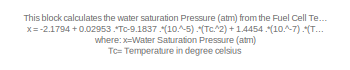
[diagram: Fuel Cell Model/From Pressures (atm) To Nernest Voltage (V)/From Absolute Pressure (atm) To Partial Pressures (atm)/Water Pressure output - part 1/2, top left region]
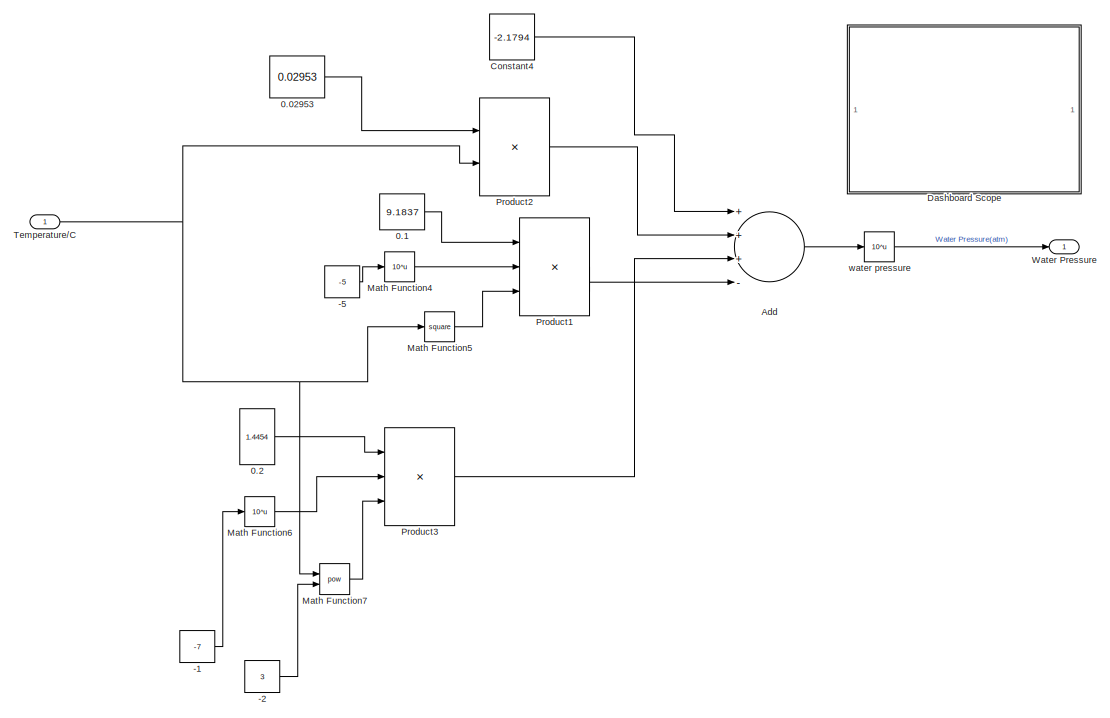
[diagram: Fuel Cell Model/From Pressures (atm) To Nernest Voltage (V)/From Absolute Pressure (atm) To Partial Pressures (atm)/Water Pressure output - part 2/2, most of the canvas]
BLOCK [SubSystem] Fuel Cell Model/From Pressures (atm) To Nernest Voltage (V)/From Absolute Pressure (atm) To Partial Pressures (atm)/Water Pressure output
  Ports = [1, 1]
  RequestExecContextInheritance = off
  Variant = off
BLOCK [Constant] Fuel Cell Model/From Pressures (atm) To Nernest Voltage (V)/From Absolute Pressure (atm) To Partial Pressures (atm)/Water Pressure output/-1
  Value = -7
BLOCK [Constant] Fuel Cell Model/From Pressures (atm) To Nernest Voltage (V)/From Absolute Pressure (atm) To Partial Pressures (atm)/Water Pressure output/-2
  Value = 3
BLOCK [Constant] Fuel Cell Model/From Pressures (atm) To Nernest Voltage (V)/From Absolute Pressure (atm) To Partial Pressures (atm)/Water Pressure output/-5
  Value = -5
BLOCK [Constant] Fuel Cell Model/From Pressures (atm) To Nernest Voltage (V)/From Absolute Pressure (atm) To Partial Pressures (atm)/Water Pressure output/0.02953
  Value = 0.02953
BLOCK [Constant] Fuel Cell Model/From Pressures (atm) To Nernest Voltage (V)/From Absolute Pressure (atm) To Partial Pressures (atm)/Water Pressure output/0.1
  Value = 9.1837
BLOCK [Constant] Fuel Cell Model/From Pressures (atm) To Nernest Voltage (V)/From Absolute Pressure (atm) To Partial Pressures (atm)/Water Pressure output/0.2
  Value = 1.4454
BLOCK [Sum] Fuel Cell Model/From Pressures (atm) To Nernest Voltage (V)/From Absolute Pressure (atm) To Partial Pressures (atm)/Water Pressure output/Add
  InputSameDT = off
  Inputs = +++-
  OutDataTypeStr = Inherit: Inherit via internal rule
  Ports = [4, 1]
  SaturateOnIntegerOverflow = off
BLOCK [Constant] Fuel Cell Model/From Pressures (atm) To Nernest Voltage (V)/From Absolute Pressure (atm) To Partial Pressures (atm)/Water Pressure output/Constant4
  Value = -2.1794
BLOCK [SubSystem] Fuel Cell Model/From Pressures (atm) To Nernest Voltage (V)/From Absolute Pressure (atm) To Partial Pressures (atm)/Water Pressure output/Dashboard Scope
  DialogController = hmiCreateDDGDialog
  IsWebBlock = on
  MaskHideContents = on
  Ports = []
  RequestExecContextInheritance = off
  Variant = off
BLOCK [Math] Fuel Cell Model/From Pressures (atm) To Nernest Voltage (V)/From Absolute Pressure (atm) To Partial Pressures (atm)/Water Pressure output/Math Function4
  Operator = 10^u
  Ports = [1, 1]
BLOCK [Math] Fuel Cell Model/From Pressures (atm) To Nernest Voltage (V)/From Absolute Pressure (atm) To Partial Pressures (atm)/Water Pressure output/Math Function5
  Operator = square
  Ports = [1, 1]
BLOCK [Math] Fuel Cell Model/From Pressures (atm) To Nernest Voltage (V)/From Absolute Pressure (atm) To Partial Pressures (atm)/Water Pressure output/Math Function6
  Operator = 10^u
  Ports = [1, 1]
BLOCK [Math] Fuel Cell Model/From Pressures (atm) To Nernest Voltage (V)/From Absolute Pressure (atm) To Partial Pressures (atm)/Water Pressure output/Math Function7
  Operator = pow
  Ports = [2, 1]
BLOCK [Product] Fuel Cell Model/From Pressures (atm) To Nernest Voltage (V)/From Absolute Pressure (atm) To Partial Pressures (atm)/Water Pressure output/Product1
  InputSameDT = off
  Inputs = 3
  OutDataTypeStr = Inherit: Inherit via internal rule
  Ports = [3, 1]
  RndMeth = Floor
  SaturateOnIntegerOverflow = off
BLOCK [Product] Fuel Cell Model/From Pressures (atm) To Nernest Voltage (V)/From Absolute Pressure (atm) To Partial Pressures (atm)/Water Pressure output/Product2
  InputSameDT = off
  OutDataTypeStr = Inherit: Inherit via internal rule
  Ports = [2, 1]
  RndMeth = Floor
  SaturateOnIntegerOverflow = off
BLOCK [Product] Fuel Cell Model/From Pressures (atm) To Nernest Voltage (V)/From Absolute Pressure (atm) To Partial Pressures (atm)/Water Pressure output/Product3
  InputSameDT = off
  Inputs = 3
  OutDataTypeStr = Inherit: Inherit via internal rule
  Ports = [3, 1]
  RndMeth = Floor
  SaturateOnIntegerOverflow = off
BLOCK [Inport] Fuel Cell Model/From Pressures (atm) To Nernest Voltage (V)/From Absolute Pressure (atm) To Partial Pressures (atm)/Water Pressure output/Temperature//C
  IconDisplay = Port number
BLOCK [Outport] Fuel Cell Model/From Pressures (atm) To Nernest Voltage (V)/From Absolute Pressure (atm) To Partial Pressures (atm)/Water Pressure output/Water Pressure
  IconDisplay = Port number
BLOCK [Math] Fuel Cell Model/From Pressures (atm) To Nernest Voltage (V)/From Absolute Pressure (atm) To Partial Pressures (atm)/Water Pressure output/water  pressure 
  Operator = 10^u
  Ports = [1, 1]
BLOCK [SubSystem] Fuel Cell Model/From Pressures (atm) To Nernest Voltage (V)/From Partial Pressures (atm) To Nernest Voltage (V)
  Ports = [4, 1]
  RequestExecContextInheritance = off
  Variant = off
BLOCK [Constant] Fuel Cell Model/From Pressures (atm) To Nernest Voltage (V)/From Partial Pressures (atm) To Nernest Voltage (V)/Constant1
BLOCK [SubSystem] Fuel Cell Model/From Pressures (atm) To Nernest Voltage (V)/From Partial Pressures (atm) To Nernest Voltage (V)/Dashboard Scope
  DialogController = hmiCreateDDGDialog
  IsWebBlock = on
  MaskHideContents = on
  Ports = []
  RequestExecContextInheritance = off
  Variant = off
BLOCK [Fcn] Fuel Cell Model/From Pressures (atm) To Nernest Voltage (V)/From Partial Pressures (atm) To Nernest Voltage (V)/Fcn
  Expr = u(1)/(u(2)*(u(3)^0.5))
BLOCK [Fcn] Fuel Cell Model/From Pressures (atm) To Nernest Voltage (V)/From Partial Pressures (atm) To Nernest Voltage (V)/Fcn1
  Expr = (-u(3)/(2*96485))-((8.314*(u(2)+273.15))*log(u(1)))/(2*96485)
BLOCK [Constant] Fuel Cell Model/From Pressures (atm) To Nernest Voltage (V)/From Partial Pressures (atm) To Nernest Voltage (V)/Gibbs Value (J//mol)
  Value = -228170
BLOCK [Inport] Fuel Cell Model/From Pressures (atm) To Nernest Voltage (V)/From Partial Pressures (atm) To Nernest Voltage (V)/Hydrogen Partial Pressure
  IconDisplay = Port number
BLOCK [If] Fuel Cell Model/From Pressures (atm) To Nernest Voltage (V)/From Partial Pressures (atm) To Nernest Voltage (V)/If
  Ports = [1, 2]
BLOCK [SubSystem] Fuel Cell Model/From Pressures (atm) To Nernest Voltage (V)/From Partial Pressures (atm) To Nernest Voltage (V)/If Action Subsystem
  Ports = [1, 1, 0, 0, 0, 0, 0, 1]
  RequestExecContextInheritance = off
  TreatAsAtomicUnit = on
  Variant = off
BLOCK [ActionPort] Fuel Cell Model/From Pressures (atm) To Nernest Voltage (V)/From Partial Pressures (atm) To Nernest Voltage (V)/If Action Subsystem/Action Port
  ActionType = then
BLOCK [Inport] Fuel Cell Model/From Pressures (atm) To Nernest Voltage (V)/From Partial Pressures (atm) To Nernest Voltage (V)/If Action Subsystem/In1
  IconDisplay = Port number
BLOCK [Outport] Fuel Cell Model/From Pressures (atm) To Nernest Voltage (V)/From Partial Pressures (atm) To Nernest Voltage (V)/If Action Subsystem/Out1
  IconDisplay = Port number
BLOCK [SubSystem] Fuel Cell Model/From Pressures (atm) To Nernest Voltage (V)/From Partial Pressures (atm) To Nernest Voltage (V)/If Action Subsystem1
  Ports = [1, 1, 0, 0, 0, 0, 0, 1]
  RequestExecContextInheritance = off
  TreatAsAtomicUnit = on
  Variant = off
BLOCK [ActionPort] Fuel Cell Model/From Pressures (atm) To Nernest Voltage (V)/From Partial Pressures (atm) To Nernest Voltage (V)/If Action Subsystem1/Action Port
  ActionType = else
BLOCK [Inport] Fuel Cell Model/From Pressures (atm) To Nernest Voltage (V)/From Partial Pressures (atm) To Nernest Voltage (V)/If Action Subsystem1/In1
  IconDisplay = Port number
BLOCK [Outport] Fuel Cell Model/From Pressures (atm) To Nernest Voltage (V)/From Partial Pressures (atm) To Nernest Voltage (V)/If Action Subsystem1/Out1
  IconDisplay = Port number
BLOCK [Merge] Fuel Cell Model/From Pressures (atm) To Nernest Voltage (V)/From Partial Pressures (atm) To Nernest Voltage (V)/Merge
  Ports = [2, 1]
BLOCK [Mux] Fuel Cell Model/From Pressures (atm) To Nernest Voltage (V)/From Partial Pressures (atm) To Nernest Voltage (V)/Mux
  DisplayOption = bar
  Inputs = 3
  Ports = [3, 1]
BLOCK [Mux] Fuel Cell Model/From Pressures (atm) To Nernest Voltage (V)/From Partial Pressures (atm) To Nernest Voltage (V)/Mux1
  DisplayOption = bar
  Inputs = 3
  Ports = [3, 1]
BLOCK [Outport] Fuel Cell Model/From Pressures (atm) To Nernest Voltage (V)/From Partial Pressures (atm) To Nernest Voltage (V)/Nernest Voltage1
  IconDisplay = Port number
BLOCK [Inport] Fuel Cell Model/From Pressures (atm) To Nernest Voltage (V)/From Partial Pressures (atm) To Nernest Voltage (V)/Oxygen Partial Pressure
  IconDisplay = Port number
  Port = 2
BLOCK [Scope] Fuel Cell Model/From Pressures (atm) To Nernest Voltage (V)/From Partial Pressures (atm) To Nernest Voltage (V)/Scope
  NumInputPorts = 1
  Ports = [1]
  ScopeSpecificationString = C++SS(StrPVP('Location','[1, 49, 1367, 727]'),StrPVP('Open','off'),MxPVP('AxesTitles',53,'struct(''axes1'',''%<SignalLabel>'')'),MxPVP('ScopeGraphics',56,'struct(''FigureColor'',''[0.5 0.5 0.5]'',''AxesColor'',''[0 0 0]'',''AxesTickColor'',''[1 1 1]'',''LineColors'',''[1 1 0;1 0 1;0 1 1;1 0 0;0 1 0;0 0 1]'',''LineStyles'',''-|-|-|-|-|-'',''LineWidths'',''[0.5 0.5 0.5 0.5 0.5 0.5]'',''MarkerStyles'...<+245ch>
BLOCK [Scope] Fuel Cell Model/From Pressures (atm) To Nernest Voltage (V)/From Partial Pressures (atm) To Nernest Voltage (V)/Scope1
  NumInputPorts = 1
  Ports = [1]
  ScopeSpecificationString = C++SS(StrPVP('Location','[188, 365, 512, 604]'),StrPVP('Open','off'),MxPVP('AxesTitles',53,'struct(''axes1'',''%<SignalLabel>'')'),MxPVP('ScopeGraphics',56,'struct(''FigureColor'',''[0.5 0.5 0.5]'',''AxesColor'',''[0 0 0]'',''AxesTickColor'',''[1 1 1]'',''LineColors'',''[1 1 0;1 0 1;0 1 1;1 0 0;0 1 0;0 0 1]'',''LineStyles'',''-|-|-|-|-|-'',''LineWidths'',''[0.5 0.5 0.5 0.5 0.5 0.5]'',''MarkerStyle...<+247ch>
BLOCK [Scope] Fuel Cell Model/From Pressures (atm) To Nernest Voltage (V)/From Partial Pressures (atm) To Nernest Voltage (V)/Scope2
  NumInputPorts = 1
  Ports = [1]
  ScopeSpecificationString = C++SS(StrPVP('Location','[188, 365, 512, 604]'),StrPVP('Open','off'),MxPVP('AxesTitles',53,'struct(''axes1'',''%<SignalLabel>'')'),MxPVP('ScopeGraphics',56,'struct(''FigureColor'',''[0.5 0.5 0.5]'',''AxesColor'',''[0 0 0]'',''AxesTickColor'',''[1 1 1]'',''LineColors'',''[1 1 0;1 0 1;0 1 1;1 0 0;0 1 0;0 0 1]'',''LineStyles'',''-|-|-|-|-|-'',''LineWidths'',''[0.5 0.5 0.5 0.5 0.5 0.5]'',''MarkerStyle...<+247ch>
BLOCK [Inport] Fuel Cell Model/From Pressures (atm) To Nernest Voltage (V)/From Partial Pressures (atm) To Nernest Voltage (V)/Temperature//C
  IconDisplay = Port number
  Port = 4
BLOCK [Inport] Fuel Cell Model/From Pressures (atm) To Nernest Voltage (V)/From Partial Pressures (atm) To Nernest Voltage (V)/Water Pressure (P_H2O)
  IconDisplay = Port number
  Port = 3
BLOCK [Inport] Fuel Cell Model/From Pressures (atm) To Nernest Voltage (V)/Hydrogen Pressure (atm)
  IconDisplay = Port number
  Port = 2
BLOCK [Outport] Fuel Cell Model/From Pressures (atm) To Nernest Voltage (V)/Nernest Voltage (V)
  IconDisplay = Port number
  Port = 2
BLOCK [Outport] Fuel Cell Model/From Pressures (atm) To Nernest Voltage (V)/Oxygen Partial Pressure
  IconDisplay = Port number
BLOCK [Inport] Fuel Cell Model/From Pressures (atm) To Nernest Voltage (V)/Temperature (C)
  IconDisplay = Port number
  Port = 4
BLOCK [Outport] Fuel Cell Model/From Pressures (atm) To Nernest Voltage (V)/Water Pressure
  IconDisplay = Port number
  Port = 3
BLOCK [Inport] Fuel Cell Model/Hydrogen Mass Flow Rate (kg//s)
  IconDisplay = Port number
BLOCK [Constant] Fuel Cell Model/Hydrogen Pressure (atm)
  Value = Hydrogen_Pressure_atm
BLOCK [Constant] Fuel Cell Model/Number of Cells
  Value = Number_of_cells
BLOCK [Scope] Fuel Cell Model/Output Voltage2
  NumInputPorts = 1
  Ports = [1]
  ScopeSpecificationString = C++SS(StrPVP('Location','[10, 60, 1380, 738]'),StrPVP('Open','off'),MxPVP('AxesTitles',53,'struct(''axes1'',''%<SignalLabel>'')'),MxPVP('ScopeGraphics',56,'struct(''FigureColor'',''[0.5 0.5 0.5]'',''AxesColor'',''[0 0 0]'',''AxesTickColor'',''[1 1 1]'',''LineColors'',''[1 1 0;1 0 1;0 1 1;1 0 0;0 1 0;0 0 1]'',''LineStyles'',''-|-|-|-|-|-'',''LineWidths'',''[0.5 0.5 0.5 0.5 0.5 0.5]'',''MarkerStyles...<+216ch>
BLOCK [ManualSwitch] Fuel Cell Model/Polarization Curve Switch
BLOCK [Product] Fuel Cell Model/Product
  InputSameDT = off
  OutDataTypeStr = Inherit: Inherit via internal rule
  Ports = [2, 1]
  RndMeth = Floor
  SaturateOnIntegerOverflow = off
BLOCK [Saturate] Fuel Cell Model/Saturation
  InputPortMap = u0
  LowerLimit = 0
  Ports = [1, 1]
  UpperLimit = inf
BLOCK [Reference] Fuel Cell Model/Saturation Dynamic  REF=simulink/Discontinuities/Saturation
Dynamic
  Ports = [3, 1]
  SourceBlock = simulink/Discontinuities/Saturation\nDynamic
  SourceProductBaseCode = SL
  SourceProductName = Simulink
  SourceType = Saturation Dynamic
BLOCK [Reference] Fuel Cell Model/Saturation Dynamic1  REF=simulink/Discontinuities/Saturation
Dynamic
  Ports = [3, 1]
  SourceBlock = simulink/Discontinuities/Saturation\nDynamic
  SourceProductBaseCode = SL
  SourceProductName = Simulink
  SourceType = Saturation Dynamic
BLOCK [Scope] Fuel Cell Model/Scope
  NumInputPorts = 1
  Ports = [1]
  ScopeSpecificationString = C++SS(StrPVP('Location','[162, 365, 512, 604]'),StrPVP('Open','off'),MxPVP('AxesTitles',53,'struct(''axes1'',''%<SignalLabel>'')'),MxPVP('ScopeGraphics',56,'struct(''FigureColor'',''[0.5 0.5 0.5]'',''AxesColor'',''[0 0 0]'',''AxesTickColor'',''[1 1 1]'',''LineColors'',''[1 1 0;1 0 1;0 1 1;1 0 0;0 1 0;0 0 1]'',''LineStyles'',''-|-|-|-|-|-'',''LineWidths'',''[0.5 0.5 0.5 0.5 0.5 0.5]'',''MarkerStyle...<+246ch>
BLOCK [Outport] Fuel Cell Model/Signal
  IconDisplay = Port number
BLOCK [Constant] Fuel Cell Model/Stack Temperature (C)
  Value = Temperature_c
BLOCK [ToWorkspace] Fuel Cell Model/To Workspace
  MaxDataPoints = inf
  Ports = [1]
  SampleTime = -1
  Save2DSignal = 2-D array (concatenate along first dimension)
  VariableName = Current_Density
BLOCK [ToWorkspace] Fuel Cell Model/To Workspace1
  MaxDataPoints = inf
  Ports = [1]
  SampleTime = -1
  Save2DSignal = 2-D array (concatenate along first dimension)
  VariableName = Voltage
BLOCK [TransferFcn] Fuel Cell Model/Transfer Fcn
  Denominator = [1e-6 1]
BLOCK [Reference] Fuel Cell Model/power  REF=simulink/Sinks/XY Graph
  Ports = [2]
  SourceBlock = simulink/Sinks/XY Graph
  SourceProductBaseCode = SL
  SourceProductName = Simulink
  SourceType = XY scope.
BLOCK [SubSystem] Hydrogen Flow Rate (Lpm)
  ClipboardFcn = sigbuilder_block('clipboard');
  CloseFcn = sigbuilder_block('close');
  ContinueFcn = sigbuilder_block('continue');
  CopyFcn = sigbuilder_block('copy');
  DeleteFcn = sigbuilder_block('delete');
  LoadFcn = sigbuilder_block('load');
  MaskHideContents = on
  ModelCloseFcn = sigbuilder_block('modelClose');
  NameChangeFcn = sigbuilder_block('namechange');
  OpenFcn = sigbuilder_block('open',[437.6 199.2 550.4 400 ]);
  PauseFcn = sigbuilder_block('pause');
  Ports = [0, 4]
  PreSaveFcn = sigbuilder_block('preSave');
  RequestExecContextInheritance = off
  StartFcn = sigbuilder_block('start');
  StopFcn = sigbuilder_block('stop');
  Tag = STV Subsys
  Variant = off
BLOCK [Demux] Hydrogen Flow Rate (Lpm)/Demux
  Ports = [1, 4]
  Tag = STV Demux
BLOCK [FromWorkspace] Hydrogen Flow Rate (Lpm)/FromWs
  SampleTime = 0
  Tag = STV FromWs
  VariableName = tuvar
  ZeroCross = on
BLOCK [Outport] Hydrogen Flow Rate (Lpm)/Signal 1
  IconDisplay = Port number
  Tag = STV Outport
BLOCK [Outport] Hydrogen Flow Rate (Lpm)/Signal 2
  IconDisplay = Port number
  Port = 2
  Tag = STV Outport
BLOCK [Outport] Hydrogen Flow Rate (Lpm)/Signal 3
  IconDisplay = Port number
  Port = 3
  Tag = STV Outport
BLOCK [Outport] Hydrogen Flow Rate (Lpm)/Signal 4
  IconDisplay = Port number
  Port = 4
  Tag = STV Outport
BLOCK [SubSystem] Hydrogen Mass Flow Rate (Kg//s) (Hydrogen Feeding System)
  Ports = [1, 0, 0, 0, 0, 0, 1]
  RequestExecContextInheritance = off
  Variant = off
BLOCK [Reference] Hydrogen Mass Flow Rate (Kg//s) (Hydrogen Feeding System)/Fuel Cell (G)  REF=fl_lib/Gas/Elements/Reservoir (G)
  Ports = [0, 0, 0, 0, 0, 1]
  SourceBlock = fl_lib/Gas/Elements/Reservoir (G)
  SourceProductBaseCode = SS
  SourceProductName = Simscape
  SourceType = Reservoir (G)
BLOCK [Reference] Hydrogen Mass Flow Rate (Kg//s) (Hydrogen Feeding System)/Gas Properties (G)  REF=fl_lib/Gas/Utilities/Gas Properties (G)
  Ports = [0, 0, 0, 0, 0, 0, 1]
  SourceBlock = fl_lib/Gas/Utilities/Gas Properties (G)
  SourceProductBaseCode = SS
  SourceProductName = Simscape
  SourceType = Gas Properties (G)
BLOCK [PMIOPort] Hydrogen Mass Flow Rate (Kg//s) (Hydrogen Feeding System)/Hydrogen Mass Flow Rate OUT (Kg//s) OUTPUT
  Port = 1
  Side = Right
BLOCK [Reference] Hydrogen Mass Flow Rate (Kg//s) (Hydrogen Feeding System)/Hydrogen Reservoir (G)  REF=fl_lib/Gas/Elements/Reservoir (G)
  Ports = [0, 0, 0, 0, 0, 1]
  SourceBlock = fl_lib/Gas/Elements/Reservoir (G)
  SourceProductBaseCode = SS
  SourceProductName = Simscape
  SourceType = Reservoir (G)
BLOCK [Reference] Hydrogen Mass Flow Rate (Kg//s) (Hydrogen Feeding System)/Mass & Energy Flow Rate Sensor (G)  REF=fl_lib/Gas/Sensors/Mass & Energy Flow
Rate Sensor (G)
  Ports = [0, 0, 0, 0, 0, 1, 3]
  SourceBlock = fl_lib/Gas/Sensors/Mass & Energy Flow\nRate Sensor (G)
  SourceProductBaseCode = SS
  SourceProductName = Simscape
  SourceType = Mass & Energy Flow\nRate Sensor (G)
BLOCK [Inport] Hydrogen Mass Flow Rate (Kg//s) (Hydrogen Feeding System)/Restriction Area (m^2)
  IconDisplay = Port number
BLOCK [Reference] Hydrogen Mass Flow Rate (Kg//s) (Hydrogen Feeding System)/Simulink-PS Converter3  REF=nesl_utility/Simulink-PS
Converter
  Ports = [1, 0, 0, 0, 0, 0, 1]
  SourceBlock = nesl_utility/Simulink-PS\nConverter
  SourceProductBaseCode = SS
  SourceProductName = Simscape
  SourceType = Simulink-PS\nConverter
BLOCK [Reference] Hydrogen Mass Flow Rate (Kg//s) (Hydrogen Feeding System)/Solver Configuration1  REF=nesl_utility/Solver
Configuration
  Ports = [0, 0, 0, 0, 0, 0, 1]
  SourceBlock = nesl_utility/Solver\nConfiguration
  SourceProductBaseCode = SS
  SourceProductName = Simscape
  SourceType = Solver\nConfiguration
BLOCK [Reference] Hydrogen Mass Flow Rate (Kg//s) (Hydrogen Feeding System)/Variable Local Restriction (G)  REF=fl_lib/Gas/Elements/Variable Local
Restriction (G)
  Ports = [0, 0, 0, 0, 0, 2, 1]
  SourceBlock = fl_lib/Gas/Elements/Variable Local\nRestriction (G)
  SourceProductBaseCode = SS
  SourceProductName = Simscape
  SourceType = Variable Local\nRestriction (G)
BLOCK [SubSystem] Integral Controller1
  Ports = [1, 1]
  RequestExecContextInheritance = off
  Variant = off
BLOCK [Sum] Integral Controller1/Add
  InputSameDT = off
  Inputs = -+
  OutDataTypeStr = Inherit: Inherit via internal rule
  Ports = [2, 1]
  SaturateOnIntegerOverflow = off
BLOCK [Sum] Integral Controller1/Add1
  InputSameDT = off
  Inputs = +-
  OutDataTypeStr = Inherit: Inherit via internal rule
  Ports = [2, 1]
  SaturateOnIntegerOverflow = off
BLOCK [Gain] Integral Controller1/Amplifier
  Gain = 100
  OutDataTypeStr = Inherit: Inherit via internal rule
  ParamDataTypeStr = Inherit: Inherit via internal rule
  SaturateOnIntegerOverflow = off
BLOCK [Constant] Integral Controller1/Constant2
  Value = 220
BLOCK [Outport] Integral Controller1/Feedback Line
  IconDisplay = Port number
BLOCK [Reference] Integral Controller1/Integrator  REF=simulink/Continuous/PID Controller
  Ports = [2, 1]
  SourceBlock = simulink/Continuous/PID Controller
  SourceProductBaseCode = SL
  SourceProductName = Simulink
  SourceType = PID 1dof
BLOCK [Inport] Integral Controller1/Output Voltage
  IconDisplay = Port number
BLOCK [DiscretePulseGenerator] Integral Controller1/Pulse Generator2
  Period = 1/5e3
  Ports = [0, 1]
  PulseType = Time based
  PulseWidth = 73.23
BLOCK [Relay] Integral Controller1/Relay
  InputProcessing = Elements as channels (sample based)
BLOCK [SubSystem] Load
  Ports = [1, 2]
  RequestExecContextInheritance = off
  Variant = off
BLOCK [BusSelector] Load/Bus Selector
  OutputAsBus = off
  OutputSignals = Cell Output Voltage (V),Number Of Cells
  Ports = [1, 2]
BLOCK [SubSystem] Load/Current from Load profile of one day
  ClipboardFcn = sigbuilder_block('clipboard');
  CloseFcn = sigbuilder_block('close');
  ContinueFcn = sigbuilder_block('continue');
  CopyFcn = sigbuilder_block('copy');
  DeleteFcn = sigbuilder_block('delete');
  LoadFcn = sigbuilder_block('load');
  MaskHideContents = on
  ModelCloseFcn = sigbuilder_block('modelClose');
  NameChangeFcn = sigbuilder_block('namechange');
  OpenFcn = sigbuilder_block('open',[403.5 117 550.5 359.25 ]);
  PauseFcn = sigbuilder_block('pause');
  Ports = [0, 2]
  PreSaveFcn = sigbuilder_block('preSave');
  RequestExecContextInheritance = off
  StartFcn = sigbuilder_block('start');
  StopFcn = sigbuilder_block('stop');
  Tag = STV Subsys
  Variant = off
BLOCK [Demux] Load/Current from Load profile of one day/Demux
  Outputs = 2
  Ports = [1, 2]
  Tag = STV Demux
BLOCK [FromWorkspace] Load/Current from Load profile of one day/FromWs
  SampleTime = 0
  Tag = STV FromWs
  VariableName = tuvar
  ZeroCross = on
BLOCK [Outport] Load/Current from Load profile of one day/Signal 1
  IconDisplay = Port number
  Tag = STV Outport
BLOCK [Outport] Load/Current from Load profile of one day/Signal 2
  IconDisplay = Port number
  Port = 2
  Tag = STV Outport
BLOCK [Outport] Load/Load Profile Current
  IconDisplay = Port number
BLOCK [Product] Load/Product
  InputSameDT = off
  OutDataTypeStr = Inherit: Inherit via internal rule
  Ports = [2, 1]
  RndMeth = Floor
  SaturateOnIntegerOverflow = off
BLOCK [Inport] Load/Signal
  IconDisplay = Port number
BLOCK [SubSystem] Load/Single day Variable Current
  DialogController = hmiCreateDDGDialog
  IsWebBlock = on
  MaskHideContents = on
  Ports = []
  RequestExecContextInheritance = off
  Variant = off
BLOCK [SubSystem] Load/Total Output Voltage
  DialogController = hmiCreateDDGDialog
  IsWebBlock = on
  MaskHideContents = on
  Ports = []
  RequestExecContextInheritance = off
  Variant = off
BLOCK [Outport] Load/Total Output Voltage (V)
  IconDisplay = Port number
  Port = 2
BLOCK [Display] OutPut Current1
  Decimation = 1
  Ports = [1]
BLOCK [Display] OutPut Current2
  Decimation = 1
  Ports = [1]
BLOCK [Display] OutPut Voltage1
  Decimation = 1
  Ports = [1]
BLOCK [Display] OutPut Voltage2
  Decimation = 1
  Ports = [1]
BLOCK [Scope] Output 
  NumInputPorts = 6
  Ports = [6]
  ScopeSpecificationString = Simulink.scopes.TimeScopeBlockCfg('CurrentConfiguration', extmgr.ConfigurationSet(extmgr.Configuration('Core','General UI',true,'FigureColor',[1 1 1]),extmgr.Configuration('Core','Source UI',true),extmgr.Configuration('Sources','WiredSimulink',true,'DataLoggingVariableName','Output_Data','DataLoggingSaveFormat','StructureWithTime','DataLoggingDecimation','1'),extmgr.Configuration('Visuals','Time D...<+5902ch>
BLOCK [Reference] PID Controller  REF=simulink/Continuous/PID Controller
  Ports = [1, 1]
  SourceBlock = simulink/Continuous/PID Controller
  SourceProductBaseCode = SL
  SourceProductName = Simulink
  SourceType = PID 1dof
BLOCK [Reference] PS-Simulink Converter  REF=nesl_utility/PS-Simulink
Converter
  Ports = [0, 1, 0, 0, 0, 1]
  SourceBlock = nesl_utility/PS-Simulink\nConverter
  SourceProductBaseCode = SS
  SourceProductName = Simscape
  SourceType = PS-Simulink\nConverter
BLOCK [Constant] Restriction Area (m^2) 
  Value = 3.5e-6
  VectorParams1D = off
BLOCK [Saturate] Saturation
  InputPortMap = u0
  LowerLimit = 0
  Ports = [1, 1]
  UpperLimit = 2.7e-5
BLOCK [Scope] Scope1
  NumInputPorts = 1
  Ports = [1]
  ScopeSpecificationString = Simulink.scopes.TimeScopeBlockCfg('CurrentConfiguration', extmgr.ConfigurationSet(extmgr.Configuration('Core','General UI',true,'FigureColor',[1 1 1]),extmgr.Configuration('Core','Source UI',true),extmgr.Configuration('Sources','WiredSimulink',true,'DataLoggingVariableName','ScopeData1'),extmgr.Configuration('Visuals','Time Domain',true,'SerializedDisplays',{struct('MinYLimReal','-0.00005','MaxYLi...<+1561ch>
BLOCK [SubSystem] Signal Builder
  ClipboardFcn = sigbuilder_block('clipboard');
  CloseFcn = sigbuilder_block('close');
  ContinueFcn = sigbuilder_block('continue');
  CopyFcn = sigbuilder_block('copy');
  DeleteFcn = sigbuilder_block('delete');
  LoadFcn = sigbuilder_block('load');
  MaskHideContents = on
  ModelCloseFcn = sigbuilder_block('modelClose');
  NameChangeFcn = sigbuilder_block('namechange');
  OpenFcn = sigbuilder_block('open',[403.5 117 550.5 359.25 ]);
  PauseFcn = sigbuilder_block('pause');
  Ports = [0, 1]
  PreSaveFcn = sigbuilder_block('preSave');
  RequestExecContextInheritance = off
  StartFcn = sigbuilder_block('start');
  StopFcn = sigbuilder_block('stop');
  Tag = STV Subsys
  Variant = off
BLOCK [Demux] Signal Builder/Demux
  Outputs = 1
  Ports = [1, 1]
  Tag = STV Demux
BLOCK [FromWorkspace] Signal Builder/FromWs
  SampleTime = 0
  Tag = STV FromWs
  VariableName = tuvar
  ZeroCross = on
BLOCK [Outport] Signal Builder/Signal 1
  IconDisplay = Port number
  Tag = STV Outport
BLOCK [Sum] Sum
  IconShape = round
  InputSameDT = off
  Inputs = |+-
  OutDataTypeStr = Inherit: Inherit via internal rule
  Ports = [2, 1]
  SaturateOnIntegerOverflow = off
BLOCK [ToWorkspace] To Workspace
  FixptAsFi = on
  MaxDataPoints = inf
  Ports = [1]
  SampleTime = -1
  Save2DSignal = 3-D array (concatenate along third dimension)
  SaveFormat = Timeseries
  VariableName = Output_Current
BLOCK [ToWorkspace] Valve
  FixptAsFi = on
  MaxDataPoints = inf
  Ports = [1]
  SampleTime = -1
  Save2DSignal = 3-D array (concatenate along third dimension)
  SaveFormat = Timeseries
  VariableName = Valve_Opening_Area
BLOCK [Reference] powergui  REF=powerlib/powergui
  Ports = []
  Priority = 1
  SourceBlock = powerlib/powergui
  SourceProductBaseCode = PS
  SourceProductName = Simscape Power Systems
  SourceType = PSB option menu block
ANNOTATION (root): FUEL CELL DYNAMIC MODEL INCLUDING THE FUEL CELL,HYDROGEN/OXYGEN FEEDING SYTEMS AND BUCK CONVERTER
ANNOTATION Buck Converter1: V(Out) = D * V(In)
ANNOTATION From Load Current and Fuel Cell Output Current (A) to Valve Restriction Area (m^2): This block is the feedback block that controls the Flow control valve of the Hydrogen feeding system I NPUTS: A) load Current (A) OUTPUTS: A) valve Restriction Area(m^2) as dictated by the Load Current B) Output Current of the Fuel Cell (A) B) valve Restriction Area (m^2) as dictated by the Fuel Cell output current
ANNOTATION From Load Current and Fuel Cell Output Current (A) to Valve Restriction Area (m^2): FEEDBACK BLOCK
ANNOTATION Fuel Cell Model: Output Voltage (V)= Nernest Voltage (V_nernest)-Activation Overvoltage (V_Act)-Ohmic Overvoltage (V_ohmic)-Concentration Overvoltage (V_conc) Each term from the above is modelled by a specific Block. As for the Current : I=Hydrogen Mass Flow Rate (kg/s)*2*F/(M_H2*n) where: I=Current (A) F=Faraday Constant=96487 C/mol M_H2=hydrogen molar mass=2.016*10^-3 kg/mol n=Number of Cells
ANNOTATION Fuel Cell Model: MATHEMATICAL DYNAMIC MODEL OF A FUEL CELL This Model calculates the Output Voltage and Current of the Fuel Cell based on the Following Equation
ANNOTATION Fuel Cell Model/ From Current Density (A//cm^2) To Overvoltages (V): This Block calculates all the Resistances in the Fuel Cell 1-Activation Overvoltage 2- Ohmic Overvoltage 3-Concentration Overvoltage INPUTS: INPUTS: A) Current Density (A/cm^2) INPUTS: A) Current Density (A/cm^2) A) Current Density (A/cm^2) OUTPUTS: A) Ohmic Overvoltage (V) OUTPUTS: A) Concentration Overvoltage (V) B) Temperature (c) OUTPUTS: A) Activation Overvoltage (V)
ANNOTATION Fuel Cell Model/ From Current Density (A//cm^2) To Overvoltages (V)/Activation Overvoltage: % Activation Losses b = R .*Tk./(2 .*Alpha .*F); V_act = -b .*log(i./io) % Tafel equation
ANNOTATION Fuel Cell Model/ From Current Density (A//cm^2) To Overvoltages (V)/Concentration Overvoltage: V_conc = Alpha1 .*(i.^k) .*log(1-(i./il));
ANNOTATION Fuel Cell Model/From Mass Flow Rates (kg//s) To Current Density (A//cm^2): The function of this block is to convert the input Hydrogen Mass Flow rate (Kg/s) to Current (A) then divide it by the Cell Area (cm^2) to get (Current Density) (A/cm^2) which will be the input of several other blocks. Inputs: a)Hydrogen Mass Flow Rate (kg/s) Outputs: Current Density (A/cm^2) b)Number of Cells c) Cell Area (cm^2)
ANNOTATION Fuel Cell Model/From Mass Flow Rates (kg//s) To Current Density (A//cm^2)/From Current (A) To Current Density (A//cm^2): i=I/A where i=Current Density (A/cm^2) I= Current (A) A=Cell Area (cm^2)
ANNOTATION Fuel Cell Model/From Mass Flow Rates (kg//s) To Current Density (A//cm^2)/Fuel Mass Flow Rate (kg//s) To Current (A): This block calculates the output Current (A) from the Hydrogen Mass Flow Rate (kg/s) I=Hydrogen Mass Flow Rate (kg/s)*2*F/(M_H2*n) where: I=Current (A) F=Faraday Constant=96487 C/mol M_H2=hydrogen molar mass=2.016*10^-3 kg/mol n=Number of Cells
ANNOTATION Fuel Cell Model/From Pressures (atm) To Nernest Voltage (V): This Block calculates the Partial Pressures of Hydrogen and Oxygen (atm) from their pressures (atm) then uses these values to calculate the Nernest Voltage (V) INPUTS: A) Current Density (i) (A/cm^2) OUTPUTS 1: A) Oxygen Partial Pressure (atm) OUTPUTS 2: A) Nernest Voltage (V) B) Absolute Hydrogen Pressure (atm) B) Water Saturation Pressure (atm) C) Absolute Air Pressure (atm) C) Hydrogen Partial ...<+32ch>
ANNOTATION Fuel Cell Model/From Pressures (atm) To Nernest Voltage (V)/From Absolute Pressure (atm) To Partial Pressures (atm)/Hydrogen Partial Pressure Output: This block calculates the Hydrogen partial Pressure (pp_H2)(atm) pp_H2 = 0.5 .*((P_H2)./(exp(1.653 .*i./(Tk.^1.334)))-P_H2O) where: pp_H2= Hydrogen Partial Pressure (atm) i=Current Density (A/cm^2) Tk= Temperature in Kelvin P_H2O= Water pressure (atm)
ANNOTATION Fuel Cell Model/From Pressures (atm) To Nernest Voltage (V)/From Absolute Pressure (atm) To Partial Pressures (atm)/Oxygen Partial Pressure Output: This block calculates the Oxygen Partial Pressure (atm) pp_O2 = (P_air./exp(4.192 .*i/(Tk.^1.334)))-P_H2O where: pp_O2= Oxygen Partial Pressure (atm) P_air= Air Pressure (atm) i= Current Density (A/cm^2) Tk= Temperature (K) P_H2O=Water Pressure (atm)
ANNOTATION Fuel Cell Model/From Pressures (atm) To Nernest Voltage (V)/From Absolute Pressure (atm) To Partial Pressures (atm)/Water Pressure output: This block calculates the water saturation Pressure (atm) from the Fuel Cell Temperature (k) x = -2.1794 + 0.02953 .*Tc-9.1837 .*(10.^-5) .*(Tc.^2) + 1.4454 .*(10.^-7) .*(Tc.^3); where: x=Water Saturation Pressure (atm) Tc= Temperature in degree celsius
ANNOTATION Fuel Cell Model/From Pressures (atm) To Nernest Voltage (V)/From Partial Pressures (atm) To Nernest Voltage (V): This block calculates the Nernest Voltage (V) from Water Pressure (atm), Hydrogen and oxygen partial pressures (atm) E_nernst = -Gf_liq./(2 .*F) - ((R .*Tk) .*log(P_H2O./(pp_H2 .*(pp_O2.^0.5))))./(2 .*F) where: E_nernest= Nernest Voltage (V) Gf_liq= Gibbs free energy value=-228170 J/mol F= Faraday Constant=96487 C/mol R=Universal Gas Constant=8.314 j/kg k Tk=Temperature (K) P_H2O= Water Pressure (...<+80ch>
ANNOTATION Hydrogen Mass Flow Rate (Kg//s) (Hydrogen Feeding System): INPUTS :A) Tank Pressure (bar) B) Tank Temperature (k) C) Hydrogen pressure (bar) at the Fuel Cell D) Restriction Area (m^2) of the Flow Control valve. OUTPUTS: A)Hydrogen Mass Flow Rate (kg/s)
ANNOTATION Hydrogen Mass Flow Rate (Kg//s) (Hydrogen Feeding System): PHYSICAL MODEL OF THE HYDROGEN FEEDING SYSTEM
ANNOTATION Hydrogen Mass Flow Rate (Kg//s) (Hydrogen Feeding System): This block models the Hydrogen Feeding system to the Fuel Cell by using Physical blocks. The Hydrogen Reservoir is the Hydrogen Tank. The Variable local Restriction is modeling a flow control valve. The Second Reservoir models the Fuel Cell. It is assumed that the frictional losses in the system is 0.1 bar. It is assumed that the pipe's cross-sectional diamter is 6 mm.
ANNOTATION Load: This Block models the Load Profile as dictated by the ship Resistance in the Nile River
NET Buck Converter1/Capacitor Voltage:1 -> Buck Converter1/Output Voltage:1, Buck Converter1/Scope2:2, Buck Converter1/VC Inspector:1, Buck Converter1/VC:1
NET Buck Converter1/Inductor Current:1 -> Buck Converter1/Mean:1, Buck Converter1/Scope2:1
LINE Buck Converter1/Input Voltage:1 -> Buck Converter1/Controlled Voltage Source:1
NET Buck Converter1/Mean:1 -> Buck Converter1/IL:1, Buck Converter1/Output Current:1
LINE Buck Converter1/Voltage Feedback:1 -> Buck Converter1/MOSFET:1
LINE Buck Converter1:1 -> OutPut Voltage1:1
LINE Buck Converter1:2 -> OutPut Current1:1
LINE Buck Converter1:3 -> Integral Controller1:1
NET Bus Creator:1 -> Bus Selector:1, From Load Current and Fuel Cell Output Current (A) to Valve Restriction Area (m^2):1
LINE Bus Selector:1 -> Output :1
LINE Bus Selector:2 -> Output :2
LINE Bus Selector:3 -> Output :3
NET Bus Selector:4 -> From Load Current and Fuel Cell Output Current (A) to Valve Restriction Area (m^2):2, OutPut Current2:1, Output :4, To Workspace:1
NET Bus Selector:5 -> Buck Converter1:1, OutPut Voltage2:1, Output :5
LINE Bus Selector:6 -> Output :6
LINE From Load Current and Fuel Cell Output Current (A) to Valve Restriction Area (m^2)/Fcn1:1 -> From Load Current and Fuel Cell Output Current (A) to Valve Restriction Area (m^2)/Valve Opening from Output Current:1
LINE From Load Current and Fuel Cell Output Current (A) to Valve Restriction Area (m^2)/Fcn:1 -> From Load Current and Fuel Cell Output Current (A) to Valve Restriction Area (m^2)/Valve Opening:1
LINE From Load Current and Fuel Cell Output Current (A) to Valve Restriction Area (m^2)/Load Profile Current (A):1 -> From Load Current and Fuel Cell Output Current (A) to Valve Restriction Area (m^2)/Unit Delay2:1
LINE From Load Current and Fuel Cell Output Current (A) to Valve Restriction Area (m^2)/Output Current:1 -> From Load Current and Fuel Cell Output Current (A) to Valve Restriction Area (m^2)/Unit Delay1:1
LINE From Load Current and Fuel Cell Output Current (A) to Valve Restriction Area (m^2)/Unit Delay1:1 -> From Load Current and Fuel Cell Output Current (A) to Valve Restriction Area (m^2)/Fcn1:1
LINE From Load Current and Fuel Cell Output Current (A) to Valve Restriction Area (m^2)/Unit Delay2:1 -> From Load Current and Fuel Cell Output Current (A) to Valve Restriction Area (m^2)/Fcn:1
NET From Load Current and Fuel Cell Output Current (A) to Valve Restriction Area (m^2):1 -> Display2:1, Sum:1
NET From Load Current and Fuel Cell Output Current (A) to Valve Restriction Area (m^2):2 -> Display3:1, Sum:2
NET Fuel Cell Model/ From Current Density (A//cm^2) To Overvoltages (V)/Activation Overvoltage/Activation Overvoltage (V):1 -> Fuel Cell Model/ From Current Density (A//cm^2) To Overvoltages (V)/Activation Overvoltage/Activation Overvoltage1 (V):1, Fuel Cell Model/ From Current Density (A//cm^2) To Overvoltages (V)/Activation Overvoltage/Scope:1
LINE Fuel Cell Model/ From Current Density (A//cm^2) To Overvoltages (V)/Activation Overvoltage/Alpha Charge Transfer Coefficient1:1 -> Fuel Cell Model/ From Current Density (A//cm^2) To Overvoltages (V)/Activation Overvoltage/Mux:2
LINE Fuel Cell Model/ From Current Density (A//cm^2) To Overvoltages (V)/Activation Overvoltage/Constant (b):1 -> Fuel Cell Model/ From Current Density (A//cm^2) To Overvoltages (V)/Activation Overvoltage/Mux1:1
LINE Fuel Cell Model/ From Current Density (A//cm^2) To Overvoltages (V)/Activation Overvoltage/Current Density (i)(A//cm^2):1 -> Fuel Cell Model/ From Current Density (A//cm^2) To Overvoltages (V)/Activation Overvoltage/Mux1:2
LINE Fuel Cell Model/ From Current Density (A//cm^2) To Overvoltages (V)/Activation Overvoltage/Mux1:1 -> Fuel Cell Model/ From Current Density (A//cm^2) To Overvoltages (V)/Activation Overvoltage/Activation Overvoltage (V):1
LINE Fuel Cell Model/ From Current Density (A//cm^2) To Overvoltages (V)/Activation Overvoltage/Mux:1 -> Fuel Cell Model/ From Current Density (A//cm^2) To Overvoltages (V)/Activation Overvoltage/Constant (b):1
NET Fuel Cell Model/ From Current Density (A//cm^2) To Overvoltages (V)/Activation Overvoltage/Reference Exchange Current Density (I_0)1:1 -> Fuel Cell Model/ From Current Density (A//cm^2) To Overvoltages (V)/Activation Overvoltage/Exchange Current Density (i_0):1, Fuel Cell Model/ From Current Density (A//cm^2) To Overvoltages (V)/Activation Overvoltage/Mux1:3
LINE Fuel Cell Model/ From Current Density (A//cm^2) To Overvoltages (V)/Activation Overvoltage/Temperature//C1:1 -> Fuel Cell Model/ From Current Density (A//cm^2) To Overvoltages (V)/Activation Overvoltage/Mux:1
NET Fuel Cell Model/ From Current Density (A//cm^2) To Overvoltages (V)/Activation Overvoltage:1 -> Fuel Cell Model/ From Current Density (A//cm^2) To Overvoltages (V)/Activation Overvoltage (V):1, Fuel Cell Model/ From Current Density (A//cm^2) To Overvoltages (V)/To Workspace2:1
LINE Fuel Cell Model/ From Current Density (A//cm^2) To Overvoltages (V)/Activation Overvoltage:2 -> Fuel Cell Model/ From Current Density (A//cm^2) To Overvoltages (V)/Exchange Current Density (i_0):1
LINE Fuel Cell Model/ From Current Density (A//cm^2) To Overvoltages (V)/Concentration Overvoltage/Amplification Constant Alpha2:1 -> Fuel Cell Model/ From Current Density (A//cm^2) To Overvoltages (V)/Concentration Overvoltage/Mux1:4
LINE Fuel Cell Model/ From Current Density (A//cm^2) To Overvoltages (V)/Concentration Overvoltage/Compare To Zero:1 -> Fuel Cell Model/ From Current Density (A//cm^2) To Overvoltages (V)/Concentration Overvoltage/If:1
LINE Fuel Cell Model/ From Current Density (A//cm^2) To Overvoltages (V)/Concentration Overvoltage/Concentration Overvoltage (V):1 -> Fuel Cell Model/ From Current Density (A//cm^2) To Overvoltages (V)/Concentration Overvoltage/Concentration Overvoltage1 (V) :1
NET Fuel Cell Model/ From Current Density (A//cm^2) To Overvoltages (V)/Concentration Overvoltage/Current Density (i)1:1 -> Fuel Cell Model/ From Current Density (A//cm^2) To Overvoltages (V)/Concentration Overvoltage/Mux1:1, Fuel Cell Model/ From Current Density (A//cm^2) To Overvoltages (V)/Concentration Overvoltage/Mux:1
NET Fuel Cell Model/ From Current Density (A//cm^2) To Overvoltages (V)/Concentration Overvoltage/Fcn:1 -> Fuel Cell Model/ From Current Density (A//cm^2) To Overvoltages (V)/Concentration Overvoltage/Compare To Zero:1, Fuel Cell Model/ From Current Density (A//cm^2) To Overvoltages (V)/Concentration Overvoltage/If Action Subsystem:1
LINE Fuel Cell Model/ From Current Density (A//cm^2) To Overvoltages (V)/Concentration Overvoltage/If Action Subsystem/In1:1 -> Fuel Cell Model/ From Current Density (A//cm^2) To Overvoltages (V)/Concentration Overvoltage/If Action Subsystem/Math Function1:1
LINE Fuel Cell Model/ From Current Density (A//cm^2) To Overvoltages (V)/Concentration Overvoltage/If Action Subsystem/Math Function1:1 -> Fuel Cell Model/ From Current Density (A//cm^2) To Overvoltages (V)/Concentration Overvoltage/If Action Subsystem/Out1:1
LINE Fuel Cell Model/ From Current Density (A//cm^2) To Overvoltages (V)/Concentration Overvoltage/If Action Subsystem1/Constant1:1 -> Fuel Cell Model/ From Current Density (A//cm^2) To Overvoltages (V)/Concentration Overvoltage/If Action Subsystem1/Out1:1
LINE Fuel Cell Model/ From Current Density (A//cm^2) To Overvoltages (V)/Concentration Overvoltage/If Action Subsystem1:1 -> Fuel Cell Model/ From Current Density (A//cm^2) To Overvoltages (V)/Concentration Overvoltage/Merge:2
LINE Fuel Cell Model/ From Current Density (A//cm^2) To Overvoltages (V)/Concentration Overvoltage/If Action Subsystem:1 -> Fuel Cell Model/ From Current Density (A//cm^2) To Overvoltages (V)/Concentration Overvoltage/Merge:1
LINE Fuel Cell Model/ From Current Density (A//cm^2) To Overvoltages (V)/Concentration Overvoltage/If:1 -> Fuel Cell Model/ From Current Density (A//cm^2) To Overvoltages (V)/Concentration Overvoltage/If Action Subsystem:ifaction
LINE Fuel Cell Model/ From Current Density (A//cm^2) To Overvoltages (V)/Concentration Overvoltage/If:2 -> Fuel Cell Model/ From Current Density (A//cm^2) To Overvoltages (V)/Concentration Overvoltage/If Action Subsystem1:ifaction
LINE Fuel Cell Model/ From Current Density (A//cm^2) To Overvoltages (V)/Concentration Overvoltage/Limiting Current (i_L)1:1 -> Fuel Cell Model/ From Current Density (A//cm^2) To Overvoltages (V)/Concentration Overvoltage/Mux:2
LINE Fuel Cell Model/ From Current Density (A//cm^2) To Overvoltages (V)/Concentration Overvoltage/Mass Transport Constant (K)1:1 -> Fuel Cell Model/ From Current Density (A//cm^2) To Overvoltages (V)/Concentration Overvoltage/Mux1:2
LINE Fuel Cell Model/ From Current Density (A//cm^2) To Overvoltages (V)/Concentration Overvoltage/Merge:1 -> Fuel Cell Model/ From Current Density (A//cm^2) To Overvoltages (V)/Concentration Overvoltage/Mux1:3
LINE Fuel Cell Model/ From Current Density (A//cm^2) To Overvoltages (V)/Concentration Overvoltage/Mux1:1 -> Fuel Cell Model/ From Current Density (A//cm^2) To Overvoltages (V)/Concentration Overvoltage/Concentration Overvoltage (V):1
LINE Fuel Cell Model/ From Current Density (A//cm^2) To Overvoltages (V)/Concentration Overvoltage/Mux:1 -> Fuel Cell Model/ From Current Density (A//cm^2) To Overvoltages (V)/Concentration Overvoltage/Fcn:1
NET Fuel Cell Model/ From Current Density (A//cm^2) To Overvoltages (V)/Concentration Overvoltage:1 -> Fuel Cell Model/ From Current Density (A//cm^2) To Overvoltages (V)/Concentration Overvoltage (V):1, Fuel Cell Model/ From Current Density (A//cm^2) To Overvoltages (V)/To Workspace1:1
NET Fuel Cell Model/ From Current Density (A//cm^2) To Overvoltages (V)/Current Density (A//cm^2):1 -> Fuel Cell Model/ From Current Density (A//cm^2) To Overvoltages (V)/Activation Overvoltage:2, Fuel Cell Model/ From Current Density (A//cm^2) To Overvoltages (V)/Concentration Overvoltage:1, Fuel Cell Model/ From Current Density (A//cm^2) To Overvoltages (V)/Ohmic Overvoltage:1
LINE Fuel Cell Model/ From Current Density (A//cm^2) To Overvoltages (V)/Ohmic Overvoltage/Constant:1 -> Fuel Cell Model/ From Current Density (A//cm^2) To Overvoltages (V)/Ohmic Overvoltage/V_Resistive1:3
LINE Fuel Cell Model/ From Current Density (A//cm^2) To Overvoltages (V)/Ohmic Overvoltage/Current Density (i ):1 -> Fuel Cell Model/ From Current Density (A//cm^2) To Overvoltages (V)/Ohmic Overvoltage/V_Resistive1:1
LINE Fuel Cell Model/ From Current Density (A//cm^2) To Overvoltages (V)/Ohmic Overvoltage/Internal Resistance (r):1 -> Fuel Cell Model/ From Current Density (A//cm^2) To Overvoltages (V)/Ohmic Overvoltage/V_Resistive1:2
LINE Fuel Cell Model/ From Current Density (A//cm^2) To Overvoltages (V)/Ohmic Overvoltage/V_Resistive1:1 -> Fuel Cell Model/ From Current Density (A//cm^2) To Overvoltages (V)/Ohmic Overvoltage/V_Resistive:1
NET Fuel Cell Model/ From Current Density (A//cm^2) To Overvoltages (V)/Ohmic Overvoltage:1 -> Fuel Cell Model/ From Current Density (A//cm^2) To Overvoltages (V)/Ohmic Overvoltage (V):1, Fuel Cell Model/ From Current Density (A//cm^2) To Overvoltages (V)/To Workspace3:1
LINE Fuel Cell Model/ From Current Density (A//cm^2) To Overvoltages (V)/Temperature (C):1 -> Fuel Cell Model/ From Current Density (A//cm^2) To Overvoltages (V)/Activation Overvoltage:1
LINE Fuel Cell Model/ From Current Density (A//cm^2) To Overvoltages (V):1 -> Fuel Cell Model/Cell dynamic:1
NET Fuel Cell Model/ From Current Density (A//cm^2) To Overvoltages (V):2 -> Fuel Cell Model/Add1:2, Fuel Cell Model/Saturation Dynamic:3
LINE Fuel Cell Model/ From Current Density (A//cm^2) To Overvoltages (V):4 -> Fuel Cell Model/Saturation Dynamic1:3
NET Fuel Cell Model/Add1:1 -> Fuel Cell Model/Output Voltage2:1, Fuel Cell Model/Saturation:1, Fuel Cell Model/To Workspace1:1, Fuel Cell Model/power:2
LINE Fuel Cell Model/Add:1 -> Fuel Cell Model/Saturation Dynamic:2
LINE Fuel Cell Model/Air Flow Rate To Current (A)1/Current (A):1 -> Fuel Cell Model/Air Flow Rate To Current (A)1/Product:1
LINE Fuel Cell Model/Air Flow Rate To Current (A)1/Divide:1 -> Fuel Cell Model/Air Flow Rate To Current (A)1/Product2:1
LINE Fuel Cell Model/Air Flow Rate To Current (A)1/F:1 -> Fuel Cell Model/Air Flow Rate To Current (A)1/Product1:1
LINE Fuel Cell Model/Air Flow Rate To Current (A)1/No. of Cells:1 -> Fuel Cell Model/Air Flow Rate To Current (A)1/Product:2
LINE Fuel Cell Model/Air Flow Rate To Current (A)1/Oxygen Molar Mass (Kg//mol):1 -> Fuel Cell Model/Air Flow Rate To Current (A)1/Product2:2
LINE Fuel Cell Model/Air Flow Rate To Current (A)1/Product1:1 -> Fuel Cell Model/Air Flow Rate To Current (A)1/Divide:2
NET Fuel Cell Model/Air Flow Rate To Current (A)1/Product2:1 -> Fuel Cell Model/Air Flow Rate To Current (A)1/Air Flow Rate (m^3//s):1, Fuel Cell Model/Air Flow Rate To Current (A)1/Scope:1
LINE Fuel Cell Model/Air Flow Rate To Current (A)1/Product:1 -> Fuel Cell Model/Air Flow Rate To Current (A)1/Divide:1
LINE Fuel Cell Model/Air Flow Rate To Current (A)1/c:1 -> Fuel Cell Model/Air Flow Rate To Current (A)1/Product1:2
LINE Fuel Cell Model/Air Pressue (atm):1 -> Fuel Cell Model/Bus Creator:1
LINE Fuel Cell Model/Bus Creator1:1 -> Fuel Cell Model/Signal:1
NET Fuel Cell Model/Bus Creator:1 -> Fuel Cell Model/Bus Selector1:1, Fuel Cell Model/Bus Selector2:1, Fuel Cell Model/Bus Selector4:1, Fuel Cell Model/Bus Selector:1
LINE Fuel Cell Model/Bus Selector1:1 -> Fuel Cell Model/From Pressures (atm) To Nernest Voltage (V):1
LINE Fuel Cell Model/Bus Selector1:2 -> Fuel Cell Model/From Pressures (atm) To Nernest Voltage (V):2
LINE Fuel Cell Model/Bus Selector1:3 -> Fuel Cell Model/From Pressures (atm) To Nernest Voltage (V):3
LINE Fuel Cell Model/Bus Selector1:4 -> Fuel Cell Model/From Pressures (atm) To Nernest Voltage (V):4
LINE Fuel Cell Model/Bus Selector2:1 -> Fuel Cell Model/Product:1
LINE Fuel Cell Model/Bus Selector2:2 -> Fuel Cell Model/Product:2
LINE Fuel Cell Model/Bus Selector2:3 -> Fuel Cell Model/Bus Creator1:8
LINE Fuel Cell Model/Bus Selector4:1 -> Fuel Cell Model/ From Current Density (A//cm^2) To Overvoltages (V):1
LINE Fuel Cell Model/Bus Selector4:2 -> Fuel Cell Model/ From Current Density (A//cm^2) To Overvoltages (V):2
LINE Fuel Cell Model/Bus Selector:1 -> Fuel Cell Model/From Mass Flow Rates (kg//s) To Current Density (A//cm^2):1
LINE Fuel Cell Model/Bus Selector:2 -> Fuel Cell Model/From Mass Flow Rates (kg//s) To Current Density (A//cm^2):2
LINE Fuel Cell Model/Bus Selector:3 -> Fuel Cell Model/From Mass Flow Rates (kg//s) To Current Density (A//cm^2):3
LINE Fuel Cell Model/Cell Area (cm^2):1 -> Fuel Cell Model/Bus Creator:4
LINE Fuel Cell Model/Cell dynamic:1 -> Fuel Cell Model/Add:2
LINE Fuel Cell Model/Constant1:1 -> Fuel Cell Model/Saturation Dynamic:1
LINE Fuel Cell Model/Constant2:1 -> Fuel Cell Model/Saturation Dynamic1:1
LINE Fuel Cell Model/Current Density A//cm^2 (Polarization Curve):1 -> Fuel Cell Model/Polarization Curve Switch:2
LINE Fuel Cell Model/From Mass Flow Rates (kg//s) To Current Density (A//cm^2)/Cell Area (cm^2):1 -> Fuel Cell Model/From Mass Flow Rates (kg//s) To Current Density (A//cm^2)/From Current (A) To Current Density (A//cm^2):2
LINE Fuel Cell Model/From Mass Flow Rates (kg//s) To Current Density (A//cm^2)/From Current (A) To Current Density (A//cm^2)/Cell Area (cm^2):1 -> Fuel Cell Model/From Mass Flow Rates (kg//s) To Current Density (A//cm^2)/From Current (A) To Current Density (A//cm^2)/Divide:2
LINE Fuel Cell Model/From Mass Flow Rates (kg//s) To Current Density (A//cm^2)/From Current (A) To Current Density (A//cm^2)/Divide:1 -> Fuel Cell Model/From Mass Flow Rates (kg//s) To Current Density (A//cm^2)/From Current (A) To Current Density (A//cm^2)/Current Density (A//cm^2):1
LINE Fuel Cell Model/From Mass Flow Rates (kg//s) To Current Density (A//cm^2)/From Current (A) To Current Density (A//cm^2)/Nominal Current (A):1 -> Fuel Cell Model/From Mass Flow Rates (kg//s) To Current Density (A//cm^2)/From Current (A) To Current Density (A//cm^2)/Divide:1
LINE Fuel Cell Model/From Mass Flow Rates (kg//s) To Current Density (A//cm^2)/From Current (A) To Current Density (A//cm^2):1 -> Fuel Cell Model/From Mass Flow Rates (kg//s) To Current Density (A//cm^2)/Current Density (A//cm^2):1
LINE Fuel Cell Model/From Mass Flow Rates (kg//s) To Current Density (A//cm^2)/Fuel Mass Flow Rate (kg//s) To Current (A)/Constant1:1 -> Fuel Cell Model/From Mass Flow Rates (kg//s) To Current Density (A//cm^2)/Fuel Mass Flow Rate (kg//s) To Current (A)/Product1:1
LINE Fuel Cell Model/From Mass Flow Rates (kg//s) To Current Density (A//cm^2)/Fuel Mass Flow Rate (kg//s) To Current (A)/Divide:1 -> Fuel Cell Model/From Mass Flow Rates (kg//s) To Current Density (A//cm^2)/Fuel Mass Flow Rate (kg//s) To Current (A)/Current (A):1
LINE Fuel Cell Model/From Mass Flow Rates (kg//s) To Current Density (A//cm^2)/Fuel Mass Flow Rate (kg//s) To Current (A)/F:1 -> Fuel Cell Model/From Mass Flow Rates (kg//s) To Current Density (A//cm^2)/Fuel Mass Flow Rate (kg//s) To Current (A)/Product1:2
NET Fuel Cell Model/From Mass Flow Rates (kg//s) To Current Density (A//cm^2)/Fuel Mass Flow Rate (kg//s) To Current (A)/Hydrogen Flow Rate (kg//s):1 -> Fuel Cell Model/From Mass Flow Rates (kg//s) To Current Density (A//cm^2)/Fuel Mass Flow Rate (kg//s) To Current (A)/Display:1, Fuel Cell Model/From Mass Flow Rates (kg//s) To Current Density (A//cm^2)/Fuel Mass Flow Rate (kg//s) To Current (A)/Product:1
LINE Fuel Cell Model/From Mass Flow Rates (kg//s) To Current Density (A//cm^2)/Fuel Mass Flow Rate (kg//s) To Current (A)/Hydrogen Molar Mass:1 -> Fuel Cell Model/From Mass Flow Rates (kg//s) To Current Density (A//cm^2)/Fuel Mass Flow Rate (kg//s) To Current (A)/Product2:1
LINE Fuel Cell Model/From Mass Flow Rates (kg//s) To Current Density (A//cm^2)/Fuel Mass Flow Rate (kg//s) To Current (A)/Number Of Cells:1 -> Fuel Cell Model/From Mass Flow Rates (kg//s) To Current Density (A//cm^2)/Fuel Mass Flow Rate (kg//s) To Current (A)/Product2:2
LINE Fuel Cell Model/From Mass Flow Rates (kg//s) To Current Density (A//cm^2)/Fuel Mass Flow Rate (kg//s) To Current (A)/Product1:1 -> Fuel Cell Model/From Mass Flow Rates (kg//s) To Current Density (A//cm^2)/Fuel Mass Flow Rate (kg//s) To Current (A)/Product:2
LINE Fuel Cell Model/From Mass Flow Rates (kg//s) To Current Density (A//cm^2)/Fuel Mass Flow Rate (kg//s) To Current (A)/Product2:1 -> Fuel Cell Model/From Mass Flow Rates (kg//s) To Current Density (A//cm^2)/Fuel Mass Flow Rate (kg//s) To Current (A)/Divide:2
LINE Fuel Cell Model/From Mass Flow Rates (kg//s) To Current Density (A//cm^2)/Fuel Mass Flow Rate (kg//s) To Current (A)/Product:1 -> Fuel Cell Model/From Mass Flow Rates (kg//s) To Current Density (A//cm^2)/Fuel Mass Flow Rate (kg//s) To Current (A)/Divide:1
LINE Fuel Cell Model/From Mass Flow Rates (kg//s) To Current Density (A//cm^2)/Fuel Mass Flow Rate (kg//s) To Current (A):1 -> Fuel Cell Model/From Mass Flow Rates (kg//s) To Current Density (A//cm^2)/From Current (A) To Current Density (A//cm^2):1
LINE Fuel Cell Model/From Mass Flow Rates (kg//s) To Current Density (A//cm^2)/Hydrogen Flow Rate (kg//s):1 -> Fuel Cell Model/From Mass Flow Rates (kg//s) To Current Density (A//cm^2)/Fuel Mass Flow Rate (kg//s) To Current (A):1
LINE Fuel Cell Model/From Mass Flow Rates (kg//s) To Current Density (A//cm^2)/Number Of Cells:1 -> Fuel Cell Model/From Mass Flow Rates (kg//s) To Current Density (A//cm^2)/Fuel Mass Flow Rate (kg//s) To Current (A):2
NET Fuel Cell Model/From Mass Flow Rates (kg//s) To Current Density (A//cm^2):1 -> Fuel Cell Model/Bus Creator1:1, Fuel Cell Model/Polarization Curve Switch:1, Fuel Cell Model/Scope:1, Fuel Cell Model/To Workspace:1
LINE Fuel Cell Model/From Pressures (atm) To Nernest Voltage (V)/Air Pressure (atm):1 -> Fuel Cell Model/From Pressures (atm) To Nernest Voltage (V)/From Absolute Pressure (atm) To Partial Pressures (atm):3
LINE Fuel Cell Model/From Pressures (atm) To Nernest Voltage (V)/Current Density (i):1 -> Fuel Cell Model/From Pressures (atm) To Nernest Voltage (V)/From Absolute Pressure (atm) To Partial Pressures (atm):1
LINE Fuel Cell Model/From Pressures (atm) To Nernest Voltage (V)/From Absolute Pressure (atm) To Partial Pressures (atm)/Air Pressure (P_air):1 -> Fuel Cell Model/From Pressures (atm) To Nernest Voltage (V)/From Absolute Pressure (atm) To Partial Pressures (atm)/Bus Creator:1
NET Fuel Cell Model/From Pressures (atm) To Nernest Voltage (V)/From Absolute Pressure (atm) To Partial Pressures (atm)/Bus Creator:1 -> Fuel Cell Model/From Pressures (atm) To Nernest Voltage (V)/From Absolute Pressure (atm) To Partial Pressures (atm)/Bus Selector1:1, Fuel Cell Model/From Pressures (atm) To Nernest Voltage (V)/From Absolute Pressure (atm) To Partial Pressures (atm)/Bus Selector2:1, Fuel Cell Model/From Pressures (atm) To Nernest Voltage (V)/From Absolute Pressure (atm) To Partial Pressures (atm)/Bus Selector:1
LINE Fuel Cell Model/From Pressures (atm) To Nernest Voltage (V)/From Absolute Pressure (atm) To Partial Pressures (atm)/Bus Selector1:1 -> Fuel Cell Model/From Pressures (atm) To Nernest Voltage (V)/From Absolute Pressure (atm) To Partial Pressures (atm)/Water Pressure output:1
LINE Fuel Cell Model/From Pressures (atm) To Nernest Voltage (V)/From Absolute Pressure (atm) To Partial Pressures (atm)/Bus Selector2:1 -> Fuel Cell Model/From Pressures (atm) To Nernest Voltage (V)/From Absolute Pressure (atm) To Partial Pressures (atm)/Hydrogen Partial Pressure Output:1
LINE Fuel Cell Model/From Pressures (atm) To Nernest Voltage (V)/From Absolute Pressure (atm) To Partial Pressures (atm)/Bus Selector2:2 -> Fuel Cell Model/From Pressures (atm) To Nernest Voltage (V)/From Absolute Pressure (atm) To Partial Pressures (atm)/Hydrogen Partial Pressure Output:2
LINE Fuel Cell Model/From Pressures (atm) To Nernest Voltage (V)/From Absolute Pressure (atm) To Partial Pressures (atm)/Bus Selector2:3 -> Fuel Cell Model/From Pressures (atm) To Nernest Voltage (V)/From Absolute Pressure (atm) To Partial Pressures (atm)/Hydrogen Partial Pressure Output:3
LINE Fuel Cell Model/From Pressures (atm) To Nernest Voltage (V)/From Absolute Pressure (atm) To Partial Pressures (atm)/Bus Selector2:4 -> Fuel Cell Model/From Pressures (atm) To Nernest Voltage (V)/From Absolute Pressure (atm) To Partial Pressures (atm)/Hydrogen Partial Pressure Output:4
LINE Fuel Cell Model/From Pressures (atm) To Nernest Voltage (V)/From Absolute Pressure (atm) To Partial Pressures (atm)/Bus Selector:1 -> Fuel Cell Model/From Pressures (atm) To Nernest Voltage (V)/From Absolute Pressure (atm) To Partial Pressures (atm)/Oxygen Partial Pressure Output:1
LINE Fuel Cell Model/From Pressures (atm) To Nernest Voltage (V)/From Absolute Pressure (atm) To Partial Pressures (atm)/Bus Selector:2 -> Fuel Cell Model/From Pressures (atm) To Nernest Voltage (V)/From Absolute Pressure (atm) To Partial Pressures (atm)/Oxygen Partial Pressure Output:2
LINE Fuel Cell Model/From Pressures (atm) To Nernest Voltage (V)/From Absolute Pressure (atm) To Partial Pressures (atm)/Bus Selector:3 -> Fuel Cell Model/From Pressures (atm) To Nernest Voltage (V)/From Absolute Pressure (atm) To Partial Pressures (atm)/Oxygen Partial Pressure Output:3
LINE Fuel Cell Model/From Pressures (atm) To Nernest Voltage (V)/From Absolute Pressure (atm) To Partial Pressures (atm)/Bus Selector:4 -> Fuel Cell Model/From Pressures (atm) To Nernest Voltage (V)/From Absolute Pressure (atm) To Partial Pressures (atm)/Oxygen Partial Pressure Output:4
LINE Fuel Cell Model/From Pressures (atm) To Nernest Voltage (V)/From Absolute Pressure (atm) To Partial Pressures (atm)/Current Density (i ):1 -> Fuel Cell Model/From Pressures (atm) To Nernest Voltage (V)/From Absolute Pressure (atm) To Partial Pressures (atm)/Bus Creator:2
NET Fuel Cell Model/From Pressures (atm) To Nernest Voltage (V)/From Absolute Pressure (atm) To Partial Pressures (atm)/Hydrogen Partial Pressure Output/Current Density (i ):1 -> Fuel Cell Model/From Pressures (atm) To Nernest Voltage (V)/From Absolute Pressure (atm) To Partial Pressures (atm)/Hydrogen Partial Pressure Output/Mux:2, Fuel Cell Model/From Pressures (atm) To Nernest Voltage (V)/From Absolute Pressure (atm) To Partial Pressures (atm)/Hydrogen Partial Pressure Output/Scope:1
LINE Fuel Cell Model/From Pressures (atm) To Nernest Voltage (V)/From Absolute Pressure (atm) To Partial Pressures (atm)/Hydrogen Partial Pressure Output/Fcn:1 -> Fuel Cell Model/From Pressures (atm) To Nernest Voltage (V)/From Absolute Pressure (atm) To Partial Pressures (atm)/Hydrogen Partial Pressure Output/Hydrogen Partial Pressure (pp_H2):1
LINE Fuel Cell Model/From Pressures (atm) To Nernest Voltage (V)/From Absolute Pressure (atm) To Partial Pressures (atm)/Hydrogen Partial Pressure Output/Hydrogen Pressure (P_H2):1 -> Fuel Cell Model/From Pressures (atm) To Nernest Voltage (V)/From Absolute Pressure (atm) To Partial Pressures (atm)/Hydrogen Partial Pressure Output/Mux:1
LINE Fuel Cell Model/From Pressures (atm) To Nernest Voltage (V)/From Absolute Pressure (atm) To Partial Pressures (atm)/Hydrogen Partial Pressure Output/Mux:1 -> Fuel Cell Model/From Pressures (atm) To Nernest Voltage (V)/From Absolute Pressure (atm) To Partial Pressures (atm)/Hydrogen Partial Pressure Output/Fcn:1
LINE Fuel Cell Model/From Pressures (atm) To Nernest Voltage (V)/From Absolute Pressure (atm) To Partial Pressures (atm)/Hydrogen Partial Pressure Output/Temperature//C:1 -> Fuel Cell Model/From Pressures (atm) To Nernest Voltage (V)/From Absolute Pressure (atm) To Partial Pressures (atm)/Hydrogen Partial Pressure Output/Mux:3
LINE Fuel Cell Model/From Pressures (atm) To Nernest Voltage (V)/From Absolute Pressure (atm) To Partial Pressures (atm)/Hydrogen Partial Pressure Output/Water Pressure:1 -> Fuel Cell Model/From Pressures (atm) To Nernest Voltage (V)/From Absolute Pressure (atm) To Partial Pressures (atm)/Hydrogen Partial Pressure Output/Mux:4
LINE Fuel Cell Model/From Pressures (atm) To Nernest Voltage (V)/From Absolute Pressure (atm) To Partial Pressures (atm)/Hydrogen Partial Pressure Output:1 -> Fuel Cell Model/From Pressures (atm) To Nernest Voltage (V)/From Absolute Pressure (atm) To Partial Pressures (atm)/Hydrogen Partial Pressure (pp_H2):1
LINE Fuel Cell Model/From Pressures (atm) To Nernest Voltage (V)/From Absolute Pressure (atm) To Partial Pressures (atm)/Hydrogen Pressure (P_H2):1 -> Fuel Cell Model/From Pressures (atm) To Nernest Voltage (V)/From Absolute Pressure (atm) To Partial Pressures (atm)/Bus Creator:5
LINE Fuel Cell Model/From Pressures (atm) To Nernest Voltage (V)/From Absolute Pressure (atm) To Partial Pressures (atm)/Oxygen Partial Pressure Output/Air Pressure (P_air):1 -> Fuel Cell Model/From Pressures (atm) To Nernest Voltage (V)/From Absolute Pressure (atm) To Partial Pressures (atm)/Oxygen Partial Pressure Output/Mux:1
LINE Fuel Cell Model/From Pressures (atm) To Nernest Voltage (V)/From Absolute Pressure (atm) To Partial Pressures (atm)/Oxygen Partial Pressure Output/Current Density//i:1 -> Fuel Cell Model/From Pressures (atm) To Nernest Voltage (V)/From Absolute Pressure (atm) To Partial Pressures (atm)/Oxygen Partial Pressure Output/Mux:2
LINE Fuel Cell Model/From Pressures (atm) To Nernest Voltage (V)/From Absolute Pressure (atm) To Partial Pressures (atm)/Oxygen Partial Pressure Output/Fcn:1 -> Fuel Cell Model/From Pressures (atm) To Nernest Voltage (V)/From Absolute Pressure (atm) To Partial Pressures (atm)/Oxygen Partial Pressure Output/Oxygen Partial Pressure pp_O2:1
LINE Fuel Cell Model/From Pressures (atm) To Nernest Voltage (V)/From Absolute Pressure (atm) To Partial Pressures (atm)/Oxygen Partial Pressure Output/Mux:1 -> Fuel Cell Model/From Pressures (atm) To Nernest Voltage (V)/From Absolute Pressure (atm) To Partial Pressures (atm)/Oxygen Partial Pressure Output/Fcn:1
LINE Fuel Cell Model/From Pressures (atm) To Nernest Voltage (V)/From Absolute Pressure (atm) To Partial Pressures (atm)/Oxygen Partial Pressure Output/Temperature//C:1 -> Fuel Cell Model/From Pressures (atm) To Nernest Voltage (V)/From Absolute Pressure (atm) To Partial Pressures (atm)/Oxygen Partial Pressure Output/Mux:3
LINE Fuel Cell Model/From Pressures (atm) To Nernest Voltage (V)/From Absolute Pressure (atm) To Partial Pressures (atm)/Oxygen Partial Pressure Output/Water Pressure:1 -> Fuel Cell Model/From Pressures (atm) To Nernest Voltage (V)/From Absolute Pressure (atm) To Partial Pressures (atm)/Oxygen Partial Pressure Output/Mux:4
LINE Fuel Cell Model/From Pressures (atm) To Nernest Voltage (V)/From Absolute Pressure (atm) To Partial Pressures (atm)/Oxygen Partial Pressure Output:1 -> Fuel Cell Model/From Pressures (atm) To Nernest Voltage (V)/From Absolute Pressure (atm) To Partial Pressures (atm)/Oxygen Partial Pressure pp_O2:1
LINE Fuel Cell Model/From Pressures (atm) To Nernest Voltage (V)/From Absolute Pressure (atm) To Partial Pressures (atm)/Temperature//C:1 -> Fuel Cell Model/From Pressures (atm) To Nernest Voltage (V)/From Absolute Pressure (atm) To Partial Pressures (atm)/Bus Creator:4
LINE Fuel Cell Model/From Pressures (atm) To Nernest Voltage (V)/From Absolute Pressure (atm) To Partial Pressures (atm)/Water Pressure output/-1:1 -> Fuel Cell Model/From Pressures (atm) To Nernest Voltage (V)/From Absolute Pressure (atm) To Partial Pressures (atm)/Water Pressure output/Math Function6:1
LINE Fuel Cell Model/From Pressures (atm) To Nernest Voltage (V)/From Absolute Pressure (atm) To Partial Pressures (atm)/Water Pressure output/-2:1 -> Fuel Cell Model/From Pressures (atm) To Nernest Voltage (V)/From Absolute Pressure (atm) To Partial Pressures (atm)/Water Pressure output/Math Function7:2
LINE Fuel Cell Model/From Pressures (atm) To Nernest Voltage (V)/From Absolute Pressure (atm) To Partial Pressures (atm)/Water Pressure output/-5:1 -> Fuel Cell Model/From Pressures (atm) To Nernest Voltage (V)/From Absolute Pressure (atm) To Partial Pressures (atm)/Water Pressure output/Math Function4:1
LINE Fuel Cell Model/From Pressures (atm) To Nernest Voltage (V)/From Absolute Pressure (atm) To Partial Pressures (atm)/Water Pressure output/0.02953:1 -> Fuel Cell Model/From Pressures (atm) To Nernest Voltage (V)/From Absolute Pressure (atm) To Partial Pressures (atm)/Water Pressure output/Product2:1
LINE Fuel Cell Model/From Pressures (atm) To Nernest Voltage (V)/From Absolute Pressure (atm) To Partial Pressures (atm)/Water Pressure output/0.1:1 -> Fuel Cell Model/From Pressures (atm) To Nernest Voltage (V)/From Absolute Pressure (atm) To Partial Pressures (atm)/Water Pressure output/Product1:1
LINE Fuel Cell Model/From Pressures (atm) To Nernest Voltage (V)/From Absolute Pressure (atm) To Partial Pressures (atm)/Water Pressure output/0.2:1 -> Fuel Cell Model/From Pressures (atm) To Nernest Voltage (V)/From Absolute Pressure (atm) To Partial Pressures (atm)/Water Pressure output/Product3:1
LINE Fuel Cell Model/From Pressures (atm) To Nernest Voltage (V)/From Absolute Pressure (atm) To Partial Pressures (atm)/Water Pressure output/Add:1 -> Fuel Cell Model/From Pressures (atm) To Nernest Voltage (V)/From Absolute Pressure (atm) To Partial Pressures (atm)/Water Pressure output/water  pressure :1
LINE Fuel Cell Model/From Pressures (atm) To Nernest Voltage (V)/From Absolute Pressure (atm) To Partial Pressures (atm)/Water Pressure output/Constant4:1 -> Fuel Cell Model/From Pressures (atm) To Nernest Voltage (V)/From Absolute Pressure (atm) To Partial Pressures (atm)/Water Pressure output/Add:1
LINE Fuel Cell Model/From Pressures (atm) To Nernest Voltage (V)/From Absolute Pressure (atm) To Partial Pressures (atm)/Water Pressure output/Math Function4:1 -> Fuel Cell Model/From Pressures (atm) To Nernest Voltage (V)/From Absolute Pressure (atm) To Partial Pressures (atm)/Water Pressure output/Product1:2
LINE Fuel Cell Model/From Pressures (atm) To Nernest Voltage (V)/From Absolute Pressure (atm) To Partial Pressures (atm)/Water Pressure output/Math Function5:1 -> Fuel Cell Model/From Pressures (atm) To Nernest Voltage (V)/From Absolute Pressure (atm) To Partial Pressures (atm)/Water Pressure output/Product1:3
LINE Fuel Cell Model/From Pressures (atm) To Nernest Voltage (V)/From Absolute Pressure (atm) To Partial Pressures (atm)/Water Pressure output/Math Function6:1 -> Fuel Cell Model/From Pressures (atm) To Nernest Voltage (V)/From Absolute Pressure (atm) To Partial Pressures (atm)/Water Pressure output/Product3:2
LINE Fuel Cell Model/From Pressures (atm) To Nernest Voltage (V)/From Absolute Pressure (atm) To Partial Pressures (atm)/Water Pressure output/Math Function7:1 -> Fuel Cell Model/From Pressures (atm) To Nernest Voltage (V)/From Absolute Pressure (atm) To Partial Pressures (atm)/Water Pressure output/Product3:3
LINE Fuel Cell Model/From Pressures (atm) To Nernest Voltage (V)/From Absolute Pressure (atm) To Partial Pressures (atm)/Water Pressure output/Product1:1 -> Fuel Cell Model/From Pressures (atm) To Nernest Voltage (V)/From Absolute Pressure (atm) To Partial Pressures (atm)/Water Pressure output/Add:4
LINE Fuel Cell Model/From Pressures (atm) To Nernest Voltage (V)/From Absolute Pressure (atm) To Partial Pressures (atm)/Water Pressure output/Product2:1 -> Fuel Cell Model/From Pressures (atm) To Nernest Voltage (V)/From Absolute Pressure (atm) To Partial Pressures (atm)/Water Pressure output/Add:2
LINE Fuel Cell Model/From Pressures (atm) To Nernest Voltage (V)/From Absolute Pressure (atm) To Partial Pressures (atm)/Water Pressure output/Product3:1 -> Fuel Cell Model/From Pressures (atm) To Nernest Voltage (V)/From Absolute Pressure (atm) To Partial Pressures (atm)/Water Pressure output/Add:3
NET Fuel Cell Model/From Pressures (atm) To Nernest Voltage (V)/From Absolute Pressure (atm) To Partial Pressures (atm)/Water Pressure output/Temperature//C:1 -> Fuel Cell Model/From Pressures (atm) To Nernest Voltage (V)/From Absolute Pressure (atm) To Partial Pressures (atm)/Water Pressure output/Math Function5:1, Fuel Cell Model/From Pressures (atm) To Nernest Voltage (V)/From Absolute Pressure (atm) To Partial Pressures (atm)/Water Pressure output/Math Function7:1, Fuel Cell Model/From Pressures (atm) To Nernest Voltage (V)/From Absolute Pressure (atm) To Partial Pressures (atm)/Water Pressure output/Product2:2
LINE Fuel Cell Model/From Pressures (atm) To Nernest Voltage (V)/From Absolute Pressure (atm) To Partial Pressures (atm)/Water Pressure output/water  pressure :1 -> Fuel Cell Model/From Pressures (atm) To Nernest Voltage (V)/From Absolute Pressure (atm) To Partial Pressures (atm)/Water Pressure output/Water Pressure:1
NET Fuel Cell Model/From Pressures (atm) To Nernest Voltage (V)/From Absolute Pressure (atm) To Partial Pressures (atm)/Water Pressure output:1 -> Fuel Cell Model/From Pressures (atm) To Nernest Voltage (V)/From Absolute Pressure (atm) To Partial Pressures (atm)/Bus Creator:3, Fuel Cell Model/From Pressures (atm) To Nernest Voltage (V)/From Absolute Pressure (atm) To Partial Pressures (atm)/Water Pressure:1
LINE Fuel Cell Model/From Pressures (atm) To Nernest Voltage (V)/From Absolute Pressure (atm) To Partial Pressures (atm):1 -> Fuel Cell Model/From Pressures (atm) To Nernest Voltage (V)/From Partial Pressures (atm) To Nernest Voltage (V):1
NET Fuel Cell Model/From Pressures (atm) To Nernest Voltage (V)/From Absolute Pressure (atm) To Partial Pressures (atm):2 -> Fuel Cell Model/From Pressures (atm) To Nernest Voltage (V)/From Partial Pressures (atm) To Nernest Voltage (V):2, Fuel Cell Model/From Pressures (atm) To Nernest Voltage (V)/Oxygen Partial Pressure:1
NET Fuel Cell Model/From Pressures (atm) To Nernest Voltage (V)/From Absolute Pressure (atm) To Partial Pressures (atm):3 -> Fuel Cell Model/From Pressures (atm) To Nernest Voltage (V)/From Partial Pressures (atm) To Nernest Voltage (V):3, Fuel Cell Model/From Pressures (atm) To Nernest Voltage (V)/Water Pressure:1
LINE Fuel Cell Model/From Pressures (atm) To Nernest Voltage (V)/From Partial Pressures (atm) To Nernest Voltage (V)/Constant1:1 -> Fuel Cell Model/From Pressures (atm) To Nernest Voltage (V)/From Partial Pressures (atm) To Nernest Voltage (V)/If Action Subsystem1:1
NET Fuel Cell Model/From Pressures (atm) To Nernest Voltage (V)/From Partial Pressures (atm) To Nernest Voltage (V)/Fcn1:1 -> Fuel Cell Model/From Pressures (atm) To Nernest Voltage (V)/From Partial Pressures (atm) To Nernest Voltage (V)/Nernest Voltage1:1, Fuel Cell Model/From Pressures (atm) To Nernest Voltage (V)/From Partial Pressures (atm) To Nernest Voltage (V)/Scope:1
NET Fuel Cell Model/From Pressures (atm) To Nernest Voltage (V)/From Partial Pressures (atm) To Nernest Voltage (V)/Fcn:1 -> Fuel Cell Model/From Pressures (atm) To Nernest Voltage (V)/From Partial Pressures (atm) To Nernest Voltage (V)/If Action Subsystem:1, Fuel Cell Model/From Pressures (atm) To Nernest Voltage (V)/From Partial Pressures (atm) To Nernest Voltage (V)/If:1, Fuel Cell Model/From Pressures (atm) To Nernest Voltage (V)/From Partial Pressures (atm) To Nernest Voltage (V)/Scope1:1
LINE Fuel Cell Model/From Pressures (atm) To Nernest Voltage (V)/From Partial Pressures (atm) To Nernest Voltage (V)/Gibbs Value (J//mol):1 -> Fuel Cell Model/From Pressures (atm) To Nernest Voltage (V)/From Partial Pressures (atm) To Nernest Voltage (V)/Mux1:3
LINE Fuel Cell Model/From Pressures (atm) To Nernest Voltage (V)/From Partial Pressures (atm) To Nernest Voltage (V)/Hydrogen Partial Pressure:1 -> Fuel Cell Model/From Pressures (atm) To Nernest Voltage (V)/From Partial Pressures (atm) To Nernest Voltage (V)/Mux:2
LINE Fuel Cell Model/From Pressures (atm) To Nernest Voltage (V)/From Partial Pressures (atm) To Nernest Voltage (V)/If Action Subsystem/In1:1 -> Fuel Cell Model/From Pressures (atm) To Nernest Voltage (V)/From Partial Pressures (atm) To Nernest Voltage (V)/If Action Subsystem/Out1:1
LINE Fuel Cell Model/From Pressures (atm) To Nernest Voltage (V)/From Partial Pressures (atm) To Nernest Voltage (V)/If Action Subsystem1/In1:1 -> Fuel Cell Model/From Pressures (atm) To Nernest Voltage (V)/From Partial Pressures (atm) To Nernest Voltage (V)/If Action Subsystem1/Out1:1
LINE Fuel Cell Model/From Pressures (atm) To Nernest Voltage (V)/From Partial Pressures (atm) To Nernest Voltage (V)/If Action Subsystem1:1 -> Fuel Cell Model/From Pressures (atm) To Nernest Voltage (V)/From Partial Pressures (atm) To Nernest Voltage (V)/Merge:2
LINE Fuel Cell Model/From Pressures (atm) To Nernest Voltage (V)/From Partial Pressures (atm) To Nernest Voltage (V)/If Action Subsystem:1 -> Fuel Cell Model/From Pressures (atm) To Nernest Voltage (V)/From Partial Pressures (atm) To Nernest Voltage (V)/Merge:1
LINE Fuel Cell Model/From Pressures (atm) To Nernest Voltage (V)/From Partial Pressures (atm) To Nernest Voltage (V)/If:1 -> Fuel Cell Model/From Pressures (atm) To Nernest Voltage (V)/From Partial Pressures (atm) To Nernest Voltage (V)/If Action Subsystem:ifaction
LINE Fuel Cell Model/From Pressures (atm) To Nernest Voltage (V)/From Partial Pressures (atm) To Nernest Voltage (V)/If:2 -> Fuel Cell Model/From Pressures (atm) To Nernest Voltage (V)/From Partial Pressures (atm) To Nernest Voltage (V)/If Action Subsystem1:ifaction
NET Fuel Cell Model/From Pressures (atm) To Nernest Voltage (V)/From Partial Pressures (atm) To Nernest Voltage (V)/Merge:1 -> Fuel Cell Model/From Pressures (atm) To Nernest Voltage (V)/From Partial Pressures (atm) To Nernest Voltage (V)/Mux1:1, Fuel Cell Model/From Pressures (atm) To Nernest Voltage (V)/From Partial Pressures (atm) To Nernest Voltage (V)/Scope2:1
LINE Fuel Cell Model/From Pressures (atm) To Nernest Voltage (V)/From Partial Pressures (atm) To Nernest Voltage (V)/Mux1:1 -> Fuel Cell Model/From Pressures (atm) To Nernest Voltage (V)/From Partial Pressures (atm) To Nernest Voltage (V)/Fcn1:1
LINE Fuel Cell Model/From Pressures (atm) To Nernest Voltage (V)/From Partial Pressures (atm) To Nernest Voltage (V)/Mux:1 -> Fuel Cell Model/From Pressures (atm) To Nernest Voltage (V)/From Partial Pressures (atm) To Nernest Voltage (V)/Fcn:1
LINE Fuel Cell Model/From Pressures (atm) To Nernest Voltage (V)/From Partial Pressures (atm) To Nernest Voltage (V)/Oxygen Partial Pressure:1 -> Fuel Cell Model/From Pressures (atm) To Nernest Voltage (V)/From Partial Pressures (atm) To Nernest Voltage (V)/Mux:3
LINE Fuel Cell Model/From Pressures (atm) To Nernest Voltage (V)/From Partial Pressures (atm) To Nernest Voltage (V)/Temperature//C:1 -> Fuel Cell Model/From Pressures (atm) To Nernest Voltage (V)/From Partial Pressures (atm) To Nernest Voltage (V)/Mux1:2
LINE Fuel Cell Model/From Pressures (atm) To Nernest Voltage (V)/From Partial Pressures (atm) To Nernest Voltage (V)/Water Pressure (P_H2O):1 -> Fuel Cell Model/From Pressures (atm) To Nernest Voltage (V)/From Partial Pressures (atm) To Nernest Voltage (V)/Mux:1
LINE Fuel Cell Model/From Pressures (atm) To Nernest Voltage (V)/From Partial Pressures (atm) To Nernest Voltage (V):1 -> Fuel Cell Model/From Pressures (atm) To Nernest Voltage (V)/Nernest Voltage (V):1
LINE Fuel Cell Model/From Pressures (atm) To Nernest Voltage (V)/Hydrogen Pressure (atm):1 -> Fuel Cell Model/From Pressures (atm) To Nernest Voltage (V)/From Absolute Pressure (atm) To Partial Pressures (atm):2
NET Fuel Cell Model/From Pressures (atm) To Nernest Voltage (V)/Temperature (C):1 -> Fuel Cell Model/From Pressures (atm) To Nernest Voltage (V)/From Absolute Pressure (atm) To Partial Pressures (atm):4, Fuel Cell Model/From Pressures (atm) To Nernest Voltage (V)/From Partial Pressures (atm) To Nernest Voltage (V):4
LINE Fuel Cell Model/From Pressures (atm) To Nernest Voltage (V):1 -> Fuel Cell Model/Bus Creator1:2
NET Fuel Cell Model/From Pressures (atm) To Nernest Voltage (V):2 -> Fuel Cell Model/Add:1, Fuel Cell Model/Bus Creator1:3
LINE Fuel Cell Model/From Pressures (atm) To Nernest Voltage (V):3 -> Fuel Cell Model/Bus Creator1:4
LINE Fuel Cell Model/Hydrogen Mass Flow Rate (kg//s):1 -> Fuel Cell Model/Bus Creator:5
LINE Fuel Cell Model/Hydrogen Pressure (atm):1 -> Fuel Cell Model/Bus Creator:2
LINE Fuel Cell Model/Number of Cells:1 -> Fuel Cell Model/Bus Creator:7
LINE Fuel Cell Model/Polarization Curve Switch:1 -> Fuel Cell Model/Transfer Fcn:1
LINE Fuel Cell Model/Product:1 -> Fuel Cell Model/Bus Creator1:7
NET Fuel Cell Model/Saturation Dynamic1:1 -> Fuel Cell Model/Bus Creator:6, Fuel Cell Model/power:1
LINE Fuel Cell Model/Saturation Dynamic:1 -> Fuel Cell Model/Add1:1
LINE Fuel Cell Model/Saturation:1 -> Fuel Cell Model/Bus Creator1:5
NET Fuel Cell Model/Stack Temperature (C):1 -> Fuel Cell Model/Bus Creator1:6, Fuel Cell Model/Bus Creator:3
LINE Fuel Cell Model/Transfer Fcn:1 -> Fuel Cell Model/Saturation Dynamic1:2
NET Fuel Cell Model:1 -> Bus Creator:3, Load:1
LINE Hydrogen Mass Flow Rate (Kg//s) (Hydrogen Feeding System)/Restriction Area (m^2):1 -> Hydrogen Mass Flow Rate (Kg//s) (Hydrogen Feeding System)/Simulink-PS Converter3:1
LINE Integral Controller1/Add1:1 -> Integral Controller1/Relay:1
LINE Integral Controller1/Add:1 -> Integral Controller1/Amplifier:1
LINE Integral Controller1/Amplifier:1 -> Integral Controller1/Integrator:1
NET Integral Controller1/Constant2:1 -> Integral Controller1/Add1:2, Integral Controller1/Add:2
LINE Integral Controller1/Integrator:1 -> Integral Controller1/Add1:1
LINE Integral Controller1/Output Voltage:1 -> Integral Controller1/Add:1
LINE Integral Controller1/Pulse Generator2:1 -> Integral Controller1/Integrator:2
LINE Integral Controller1/Relay:1 -> Integral Controller1/Feedback Line:1
LINE Integral Controller1:1 -> Buck Converter1:2
LINE Load/Bus Selector:1 -> Load/Product:1
LINE Load/Bus Selector:2 -> Load/Product:2
LINE Load/Current from Load profile of one day:2 -> Load/Load Profile Current:1
LINE Load/Product:1 -> Load/Total Output Voltage (V):1
LINE Load/Signal:1 -> Load/Bus Selector:1
LINE Load:1 -> Bus Creator:1
LINE Load:2 -> Bus Creator:2
LINE PID Controller:1 -> Saturation:1
NET PS-Simulink Converter:1 ->  v:1, Bus Creator:4, Fuel Cell Model:1, Scope1:1
LINE Restriction Area (m^2) :1 -> Valve:1
NET Saturation:1 -> Display:1, Hydrogen Mass Flow Rate (Kg//s) (Hydrogen Feeding System):1
NET Sum:1 -> Display1:1, PID Controller:1
PNET net1: Buck Converter1/Capacitor Voltage:LConn1 -- Buck Converter1/Capacitor:LConn1 -- Buck Converter1/Inductor Current:RConn1 -- Buck Converter1/Load Resistor:LConn1
PNET net2: Buck Converter1/Capacitor Voltage:LConn2 -- Buck Converter1/Capacitor:RConn1 -- Buck Converter1/Controlled Voltage Source:LConn1 -- Buck Converter1/Diode:LConn1 -- Buck Converter1/Load Resistor:RConn1
PLINE Buck Converter1/Controlled Voltage Source:RConn1 -- Buck Converter1/MOSFET:LConn1
PNET net3: Buck Converter1/Diode:RConn1 -- Buck Converter1/Inductor:LConn1 -- Buck Converter1/MOSFET:RConn1
PLINE Buck Converter1/Inductor Current:LConn1 -- Buck Converter1/Inductor:RConn1
PLINE Hydrogen Mass Flow Rate (Kg//s) (Hydrogen Feeding System)/Fuel Cell (G):LConn1 -- Hydrogen Mass Flow Rate (Kg//s) (Hydrogen Feeding System)/Mass & Energy Flow Rate Sensor (G):RConn1
PNET net4: Hydrogen Mass Flow Rate (Kg//s) (Hydrogen Feeding System)/Gas Properties (G):RConn1 -- Hydrogen Mass Flow Rate (Kg//s) (Hydrogen Feeding System)/Hydrogen Reservoir (G):LConn1 -- Hydrogen Mass Flow Rate (Kg//s) (Hydrogen Feeding System)/Solver Configuration1:RConn1 -- Hydrogen Mass Flow Rate (Kg//s) (Hydrogen Feeding System)/Variable Local Restriction (G):LConn1
PLINE Hydrogen Mass Flow Rate (Kg//s) (Hydrogen Feeding System)/Hydrogen Mass Flow Rate OUT (Kg//s) OUTPUT:RConn1 -- Hydrogen Mass Flow Rate (Kg//s) (Hydrogen Feeding System)/Mass & Energy Flow Rate Sensor (G):RConn2
PLINE Hydrogen Mass Flow Rate (Kg//s) (Hydrogen Feeding System)/Mass & Energy Flow Rate Sensor (G):LConn1 -- Hydrogen Mass Flow Rate (Kg//s) (Hydrogen Feeding System)/Variable Local Restriction (G):RConn1
PLINE Hydrogen Mass Flow Rate (Kg//s) (Hydrogen Feeding System)/Simulink-PS Converter3:RConn1 -- Hydrogen Mass Flow Rate (Kg//s) (Hydrogen Feeding System)/Variable Local Restriction (G):LConn2
PLINE Hydrogen Mass Flow Rate (Kg//s) (Hydrogen Feeding System):RConn1 -- PS-Simulink Converter:LConn1
note: NET lines group one-source signal fan-out (src -> all destinations, sorted); 1:1 wires keep LINE; PNET lines group multi-terminal physical nets as a canonical sorted terminal list (undirected conserving connections); 2-terminal nets keep the pairwise PLINE form
